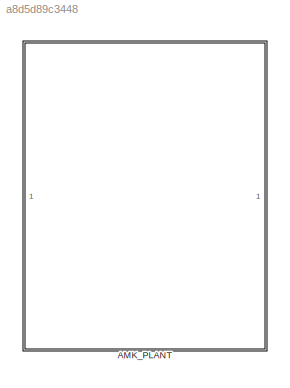
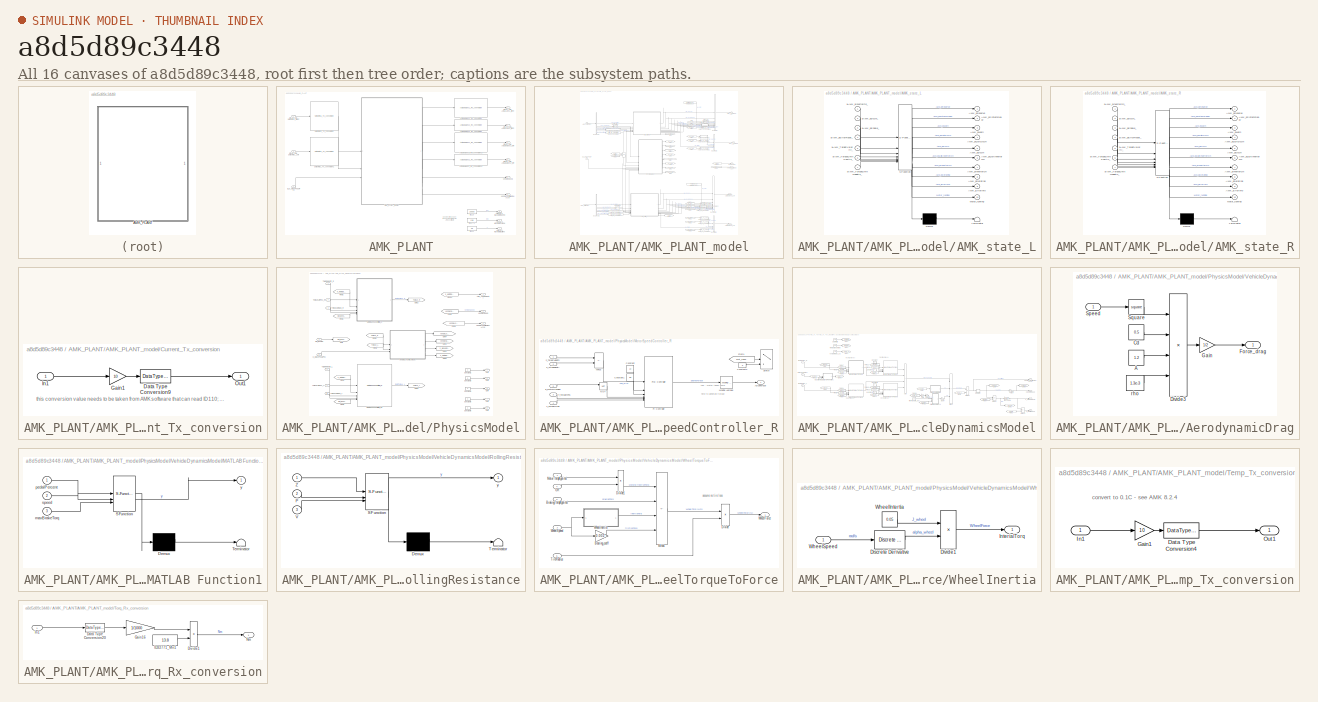
[diagram: thumbnail index - all 16 canvases of the model, root first then tree order]
MODEL slx_a8d5d89c3448
KIND library
CONFIG AbsTol = auto
CONFIG EnableMultiTasking = off
CONFIG FixedStep = auto
CONFIG MaxStep = auto
CONFIG MinStep = auto
CONFIG RelTol = 1e-3
CONFIG SampleTimeConstraint = Unconstrained
CONFIG SolverName = VariableStepAuto
CONFIG StartTime = 0.0
CONFIG StopTime = 10.0
BLOCK [SubSystem] AMK_PLANT
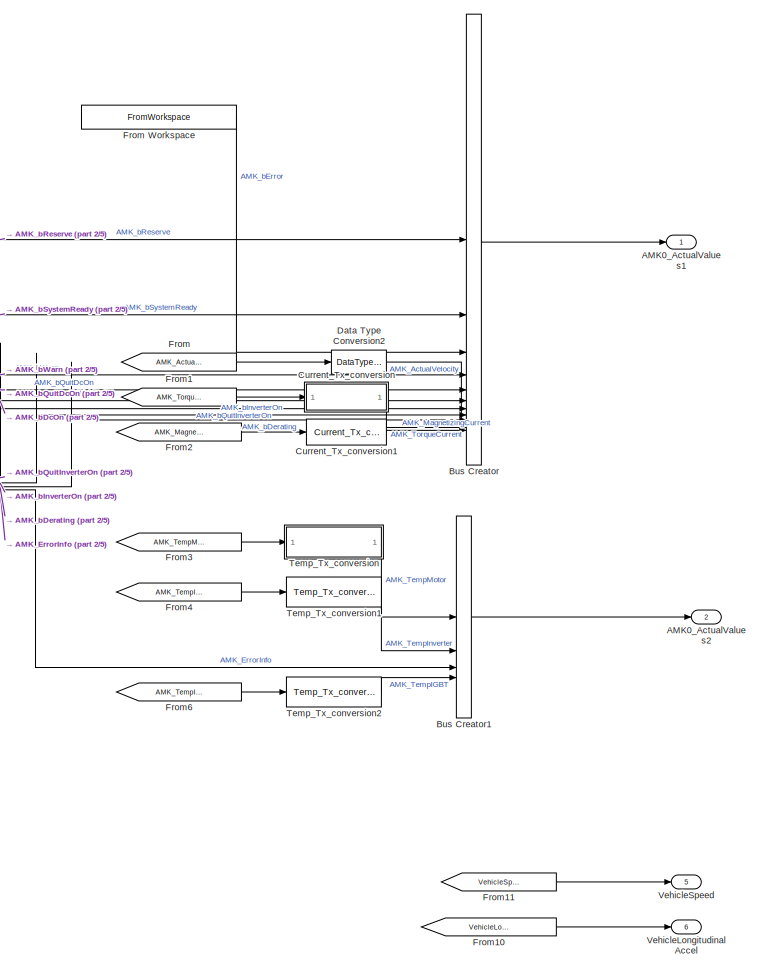
[diagram: AMK_PLANT/AMK_PLANT_model - part 1/5, top right region]
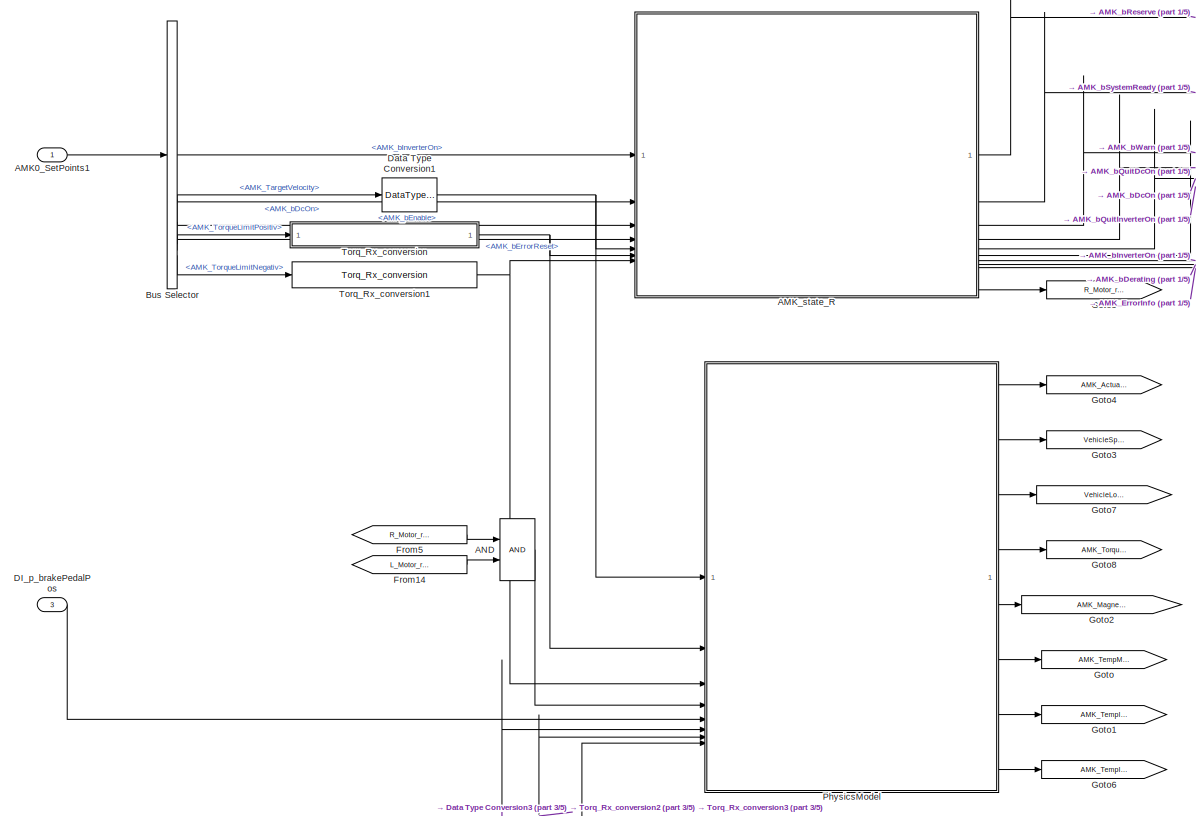
[diagram: AMK_PLANT/AMK_PLANT_model - part 2/5, middle left region]
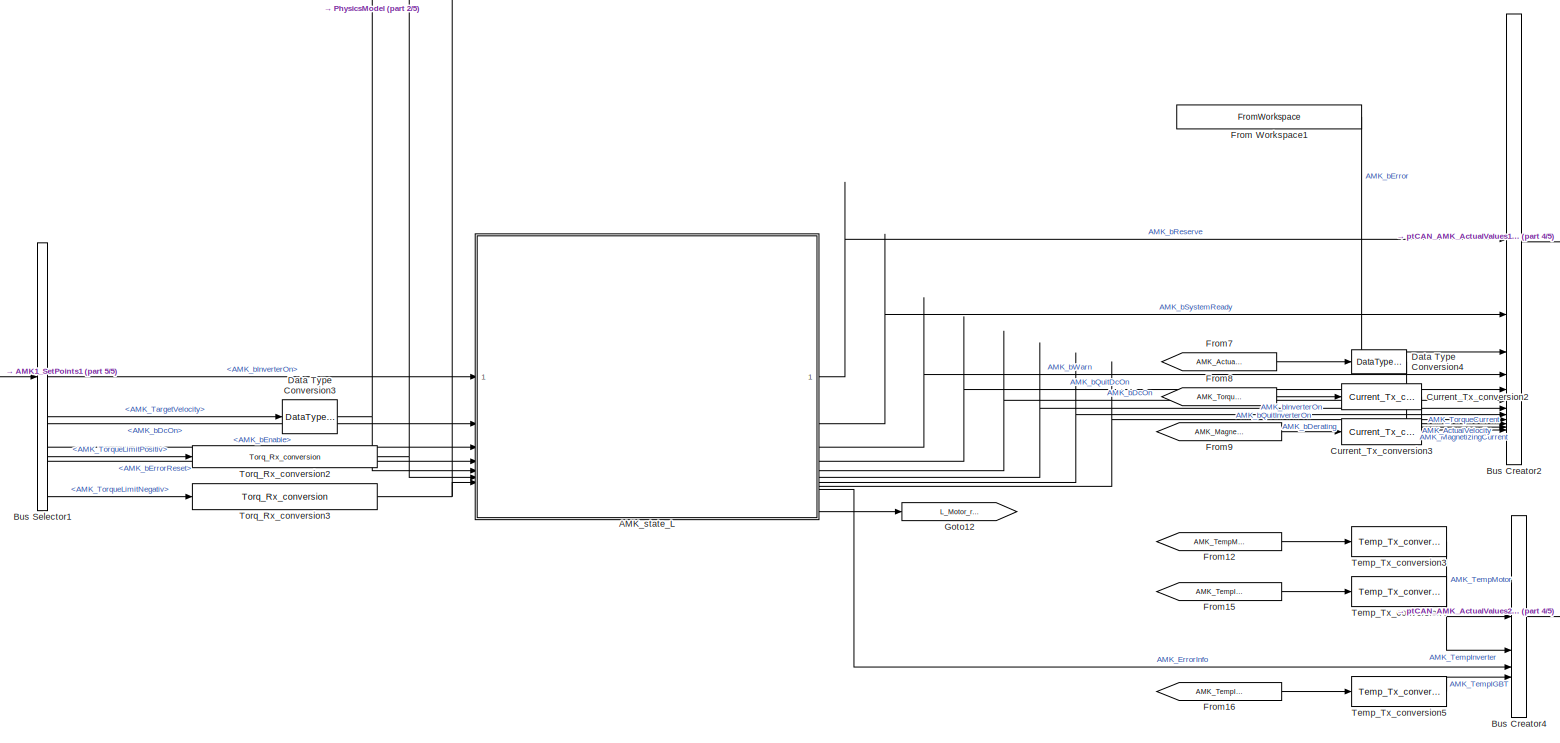
[diagram: AMK_PLANT/AMK_PLANT_model - part 3/5, full width, bottom band]
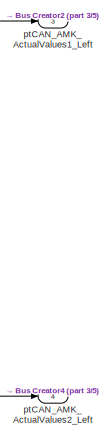
[diagram: AMK_PLANT/AMK_PLANT_model - part 4/5, bottom right region]
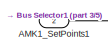
[diagram: AMK_PLANT/AMK_PLANT_model - part 5/5, bottom left region]
BLOCK [SubSystem] AMK_PLANT/AMK_PLANT_model
BLOCK [Outport] AMK_PLANT/AMK_PLANT_model/AMK0_ActualValues1
BLOCK [Outport] AMK_PLANT/AMK_PLANT_model/AMK0_ActualValues2
  Port = 2
BLOCK [Inport] AMK_PLANT/AMK_PLANT_model/AMK0_SetPoints1
BLOCK [Inport] AMK_PLANT/AMK_PLANT_model/AMK1_SetPoints1
  Port = 2
BLOCK [SubSystem] AMK_PLANT/AMK_PLANT_model/AMK_state_L
  ErrorFcn = Stateflow.Translate.translate
  PermitHierarchicalResolution = ExplicitOnly
  SFBlockType = Chart
  TreatAsAtomicUnit = on
BLOCK [Demux] AMK_PLANT/AMK_PLANT_model/AMK_state_L/ Demux 
  Outputs = 1
BLOCK [S-Function] AMK_PLANT/AMK_PLANT_model/AMK_state_L/ SFunction 
  EnableBusSupport = off
  FunctionName = sf_sfun
  PortCounts = [7 11]
  SFcnIsStateOwnerBlock = off
  SFunctionDeploymentMode = off
  Tag = Stateflow S-Function 1
BLOCK [Terminator] AMK_PLANT/AMK_PLANT_model/AMK_state_L/ Terminator 
BLOCK [Outport] AMK_PLANT/AMK_PLANT_model/AMK_state_L/AMK_ErrorInfo
  Port = 9
BLOCK [Outport] AMK_PLANT/AMK_PLANT_model/AMK_state_L/AMK_bDcOn
  Port = 5
BLOCK [Outport] AMK_PLANT/AMK_PLANT_model/AMK_state_L/AMK_bDerating
  Port = 8
BLOCK [Outport] AMK_PLANT/AMK_PLANT_model/AMK_state_L/AMK_bInverterOn
  Port = 7
BLOCK [Outport] AMK_PLANT/AMK_PLANT_model/AMK_state_L/AMK_bQuitDcOn
  Port = 4
BLOCK [Outport] AMK_PLANT/AMK_PLANT_model/AMK_state_L/AMK_bQuitInverterOn
  Port = 6
BLOCK [Outport] AMK_PLANT/AMK_PLANT_model/AMK_state_L/AMK_bReserve
BLOCK [Outport] AMK_PLANT/AMK_PLANT_model/AMK_state_L/AMK_bSystemReady
  Port = 2
BLOCK [Outport] AMK_PLANT/AMK_PLANT_model/AMK_state_L/AMK_bWarn
  Port = 3
BLOCK [Outport] AMK_PLANT/AMK_PLANT_model/AMK_state_L/Motor_running
  Port = 10
BLOCK [Inport] AMK_PLANT/AMK_PLANT_model/AMK_state_L/aAMK_TargetVelocity_
  Port = 5
BLOCK [Inport] AMK_PLANT/AMK_PLANT_model/AMK_state_L/aAMK_TorqueLimitNegativ_
  Port = 7
BLOCK [Inport] AMK_PLANT/AMK_PLANT_model/AMK_state_L/aAMK_TorqueLimitPositiv_
  Port = 6
BLOCK [Inport] AMK_PLANT/AMK_PLANT_model/AMK_state_L/aAMK_bDcOn_
  Port = 2
BLOCK [Inport] AMK_PLANT/AMK_PLANT_model/AMK_state_L/aAMK_bEnable_
  Port = 3
BLOCK [Inport] AMK_PLANT/AMK_PLANT_model/AMK_state_L/aAMK_bErrorReset_
  Port = 4
BLOCK [Inport] AMK_PLANT/AMK_PLANT_model/AMK_state_L/aAMK_bInverterOn_
BLOCK [SubSystem] AMK_PLANT/AMK_PLANT_model/AMK_state_R
  ErrorFcn = Stateflow.Translate.translate
  PermitHierarchicalResolution = ExplicitOnly
  SFBlockType = Chart
  TreatAsAtomicUnit = on
BLOCK [Demux] AMK_PLANT/AMK_PLANT_model/AMK_state_R/ Demux 
  Outputs = 1
BLOCK [S-Function] AMK_PLANT/AMK_PLANT_model/AMK_state_R/ SFunction 
  EnableBusSupport = off
  FunctionName = sf_sfun
  PortCounts = [7 11]
  SFcnIsStateOwnerBlock = off
  SFunctionDeploymentMode = off
  Tag = Stateflow S-Function 3
BLOCK [Terminator] AMK_PLANT/AMK_PLANT_model/AMK_state_R/ Terminator 
BLOCK [Outport] AMK_PLANT/AMK_PLANT_model/AMK_state_R/AMK_ErrorInfo
  Port = 9
BLOCK [Outport] AMK_PLANT/AMK_PLANT_model/AMK_state_R/AMK_bDcOn
  Port = 5
BLOCK [Outport] AMK_PLANT/AMK_PLANT_model/AMK_state_R/AMK_bDerating
  Port = 8
BLOCK [Outport] AMK_PLANT/AMK_PLANT_model/AMK_state_R/AMK_bInverterOn
  Port = 7
BLOCK [Outport] AMK_PLANT/AMK_PLANT_model/AMK_state_R/AMK_bQuitDcOn
  Port = 4
BLOCK [Outport] AMK_PLANT/AMK_PLANT_model/AMK_state_R/AMK_bQuitInverterOn
  Port = 6
BLOCK [Outport] AMK_PLANT/AMK_PLANT_model/AMK_state_R/AMK_bReserve
BLOCK [Outport] AMK_PLANT/AMK_PLANT_model/AMK_state_R/AMK_bSystemReady
  Port = 2
BLOCK [Outport] AMK_PLANT/AMK_PLANT_model/AMK_state_R/AMK_bWarn
  Port = 3
BLOCK [Outport] AMK_PLANT/AMK_PLANT_model/AMK_state_R/Motor_running
  Port = 10
BLOCK [Inport] AMK_PLANT/AMK_PLANT_model/AMK_state_R/aAMK_TargetVelocity_
  Port = 5
BLOCK [Inport] AMK_PLANT/AMK_PLANT_model/AMK_state_R/aAMK_TorqueLimitNegativ_
  Port = 7
BLOCK [Inport] AMK_PLANT/AMK_PLANT_model/AMK_state_R/aAMK_TorqueLimitPositiv_
  Port = 6
BLOCK [Inport] AMK_PLANT/AMK_PLANT_model/AMK_state_R/aAMK_bDcOn_
  Port = 2
BLOCK [Inport] AMK_PLANT/AMK_PLANT_model/AMK_state_R/aAMK_bEnable_
  Port = 3
BLOCK [Inport] AMK_PLANT/AMK_PLANT_model/AMK_state_R/aAMK_bErrorReset_
  Port = 4
BLOCK [Inport] AMK_PLANT/AMK_PLANT_model/AMK_state_R/aAMK_bInverterOn_
BLOCK [Logic] AMK_PLANT/AMK_PLANT_model/AND
  AllPortsSameDT = off
  IconShape = distinctive
  OutDataTypeStr = boolean
BLOCK [BusCreator] AMK_PLANT/AMK_PLANT_model/Bus Creator
  DisplayOption = bar
  InheritFromInputs = on
  Inputs = 12
BLOCK [BusCreator] AMK_PLANT/AMK_PLANT_model/Bus Creator1
  DisplayOption = bar
  InheritFromInputs = on
  Inputs = 4
BLOCK [BusCreator] AMK_PLANT/AMK_PLANT_model/Bus Creator2
  DisplayOption = bar
  InheritFromInputs = on
  Inputs = 12
BLOCK [BusCreator] AMK_PLANT/AMK_PLANT_model/Bus Creator4
  DisplayOption = bar
  InheritFromInputs = on
  Inputs = 4
BLOCK [BusSelector] AMK_PLANT/AMK_PLANT_model/Bus Selector
  OutputSignals = AMK_bInverterOn,AMK_bDcOn,AMK_bEnable,AMK_bErrorReset,AMK_TargetVelocity,AMK_TorqueLimitPositiv,AMK_TorqueLimitNegativ
BLOCK [BusSelector] AMK_PLANT/AMK_PLANT_model/Bus Selector1
  OutputSignals = AMK_bInverterOn,AMK_bDcOn,AMK_bEnable,AMK_bErrorReset,AMK_TargetVelocity,AMK_TorqueLimitPositiv,AMK_TorqueLimitNegativ
BLOCK [SubSystem] AMK_PLANT/AMK_PLANT_model/Current_Tx_conversion
BLOCK [DataTypeConversion] AMK_PLANT/AMK_PLANT_model/Current_Tx_conversion/Data Type Conversion9
  OutDataTypeStr = int16
  RndMeth = Floor
  SaturateOnIntegerOverflow = off
BLOCK [Gain] AMK_PLANT/AMK_PLANT_model/Current_Tx_conversion/Gain1
  Gain = 10
BLOCK [Inport] AMK_PLANT/AMK_PLANT_model/Current_Tx_conversion/In1
BLOCK [Outport] AMK_PLANT/AMK_PLANT_model/Current_Tx_conversion/Out1
BLOCK [Reference] AMK_PLANT/AMK_PLANT_model/Current_Tx_conversion1  REF=$bdroot/AMK_PLANT/AMK_PLANT_model/Current_Tx_conversion
  SourceBlock = $bdroot/AMK_PLANT/AMK_PLANT_model/Current_Tx_conversion
  SourceType = SubSystem
BLOCK [Reference] AMK_PLANT/AMK_PLANT_model/Current_Tx_conversion2  REF=$bdroot/AMK_PLANT/AMK_PLANT_model/Current_Tx_conversion
  SourceBlock = $bdroot/AMK_PLANT/AMK_PLANT_model/Current_Tx_conversion
  SourceType = SubSystem
BLOCK [Reference] AMK_PLANT/AMK_PLANT_model/Current_Tx_conversion3  REF=$bdroot/AMK_PLANT/AMK_PLANT_model/Current_Tx_conversion
  SourceBlock = $bdroot/AMK_PLANT/AMK_PLANT_model/Current_Tx_conversion
  SourceType = SubSystem
BLOCK [Inport] AMK_PLANT/AMK_PLANT_model/DI_p_brakePedalPos
  Port = 3
BLOCK [DataTypeConversion] AMK_PLANT/AMK_PLANT_model/Data Type Conversion1
  OutDataTypeStr = double
  RndMeth = Floor
  SaturateOnIntegerOverflow = off
BLOCK [DataTypeConversion] AMK_PLANT/AMK_PLANT_model/Data Type Conversion2
  OutDataTypeStr = int16
  RndMeth = Floor
  SaturateOnIntegerOverflow = off
BLOCK [DataTypeConversion] AMK_PLANT/AMK_PLANT_model/Data Type Conversion3
  OutDataTypeStr = double
  RndMeth = Floor
  SaturateOnIntegerOverflow = off
BLOCK [DataTypeConversion] AMK_PLANT/AMK_PLANT_model/Data Type Conversion4
  OutDataTypeStr = int16
  RndMeth = Floor
  SaturateOnIntegerOverflow = off
BLOCK [From] AMK_PLANT/AMK_PLANT_model/From
  GotoTag = AMK_ActualVelocity
BLOCK [FromWorkspace] AMK_PLANT/AMK_PLANT_model/From Workspace
  VariableName = VCS_inputData.get('AMK_bError_right')
BLOCK [FromWorkspace] AMK_PLANT/AMK_PLANT_model/From Workspace1
  VariableName = VCS_inputData.get('AMK_bError_left')
BLOCK [From] AMK_PLANT/AMK_PLANT_model/From1
  GotoTag = AMK_TorqueCurrent
BLOCK [From] AMK_PLANT/AMK_PLANT_model/From10
  GotoTag = VehicleLongitudinalAccel
BLOCK [From] AMK_PLANT/AMK_PLANT_model/From11
  GotoTag = VehicleSpeed
BLOCK [From] AMK_PLANT/AMK_PLANT_model/From12
  GotoTag = AMK_TempMotor
BLOCK [From] AMK_PLANT/AMK_PLANT_model/From14
  GotoTag = L_Motor_running
BLOCK [From] AMK_PLANT/AMK_PLANT_model/From15
  GotoTag = AMK_TempInverter
BLOCK [From] AMK_PLANT/AMK_PLANT_model/From16
  GotoTag = AMK_TempIGBT
BLOCK [From] AMK_PLANT/AMK_PLANT_model/From2
  GotoTag = AMK_MagnetizingCurrent
BLOCK [From] AMK_PLANT/AMK_PLANT_model/From3
  GotoTag = AMK_TempMotor
BLOCK [From] AMK_PLANT/AMK_PLANT_model/From4
  GotoTag = AMK_TempInverter
BLOCK [From] AMK_PLANT/AMK_PLANT_model/From5
  GotoTag = R_Motor_running
BLOCK [From] AMK_PLANT/AMK_PLANT_model/From6
  GotoTag = AMK_TempIGBT
BLOCK [From] AMK_PLANT/AMK_PLANT_model/From7
  GotoTag = AMK_ActualVelocity
BLOCK [From] AMK_PLANT/AMK_PLANT_model/From8
  GotoTag = AMK_TorqueCurrent
BLOCK [From] AMK_PLANT/AMK_PLANT_model/From9
  GotoTag = AMK_MagnetizingCurrent
BLOCK [Goto] AMK_PLANT/AMK_PLANT_model/Goto
  GotoTag = AMK_TempMotor
BLOCK [Goto] AMK_PLANT/AMK_PLANT_model/Goto1
  GotoTag = AMK_TempInverter
BLOCK [Goto] AMK_PLANT/AMK_PLANT_model/Goto12
  GotoTag = L_Motor_running
BLOCK [Goto] AMK_PLANT/AMK_PLANT_model/Goto2
  GotoTag = AMK_MagnetizingCurrent
BLOCK [Goto] AMK_PLANT/AMK_PLANT_model/Goto3
  GotoTag = VehicleSpeed
BLOCK [Goto] AMK_PLANT/AMK_PLANT_model/Goto4
  GotoTag = AMK_ActualVelocity
BLOCK [Goto] AMK_PLANT/AMK_PLANT_model/Goto5
  GotoTag = R_Motor_running
BLOCK [Goto] AMK_PLANT/AMK_PLANT_model/Goto6
  GotoTag = AMK_TempIGBT
BLOCK [Goto] AMK_PLANT/AMK_PLANT_model/Goto7
  GotoTag = VehicleLongitudinalAccel
BLOCK [Goto] AMK_PLANT/AMK_PLANT_model/Goto8
  GotoTag = AMK_TorqueCurrent
BLOCK [SubSystem] AMK_PLANT/AMK_PLANT_model/PhysicsModel
BLOCK [Outport] AMK_PLANT/AMK_PLANT_model/PhysicsModel/AMK_ActualVelocity
BLOCK [Constant] AMK_PLANT/AMK_PLANT_model/PhysicsModel/Constant1
  OutDataTypeStr = single
  Value = 0
BLOCK [Constant] AMK_PLANT/AMK_PLANT_model/PhysicsModel/Constant3
  OutDataTypeStr = single
  Value = 0
BLOCK [Constant] AMK_PLANT/AMK_PLANT_model/PhysicsModel/Constant4
  OutDataTypeStr = single
  Value = 0
BLOCK [Constant] AMK_PLANT/AMK_PLANT_model/PhysicsModel/Constant5
  OutDataTypeStr = single
  Value = 0
BLOCK [Constant] AMK_PLANT/AMK_PLANT_model/PhysicsModel/Constant6
  OutDataTypeStr = single
  Value = 0
BLOCK [From] AMK_PLANT/AMK_PLANT_model/PhysicsModel/From1
  GotoTag = Mot_running
BLOCK [From] AMK_PLANT/AMK_PLANT_model/PhysicsModel/From10
  GotoTag = n_MotorSpeed
BLOCK [From] AMK_PLANT/AMK_PLANT_model/PhysicsModel/From2
  GotoTag = n_MotorSpeed
BLOCK [From] AMK_PLANT/AMK_PLANT_model/PhysicsModel/From3
  GotoTag = Torque_R
BLOCK [From] AMK_PLANT/AMK_PLANT_model/PhysicsModel/From4
  GotoTag = n_MotorSpeed
BLOCK [From] AMK_PLANT/AMK_PLANT_model/PhysicsModel/From5
  GotoTag = VehicleSpeed
BLOCK [From] AMK_PLANT/AMK_PLANT_model/PhysicsModel/From6
  GotoTag = Mot_running
BLOCK [From] AMK_PLANT/AMK_PLANT_model/PhysicsModel/From8
  GotoTag = Torque_L
BLOCK [From] AMK_PLANT/AMK_PLANT_model/PhysicsModel/From9
  GotoTag = VehicleLongitudinalAccel
BLOCK [Goto] AMK_PLANT/AMK_PLANT_model/PhysicsModel/Goto
  GotoTag = Mot_running
BLOCK [Goto] AMK_PLANT/AMK_PLANT_model/PhysicsModel/Goto1
  GotoTag = n_WheelSpeed
BLOCK [Goto] AMK_PLANT/AMK_PLANT_model/PhysicsModel/Goto2
  GotoTag = Torque_R
BLOCK [Goto] AMK_PLANT/AMK_PLANT_model/PhysicsModel/Goto3
  GotoTag = VehicleSpeed
BLOCK [Goto] AMK_PLANT/AMK_PLANT_model/PhysicsModel/Goto4
  GotoTag = VehicleLongitudinalAccel
BLOCK [Goto] AMK_PLANT/AMK_PLANT_model/PhysicsModel/Goto5
  GotoTag = Torque_L
BLOCK [Goto] AMK_PLANT/AMK_PLANT_model/PhysicsModel/Goto6
  GotoTag = n_MotorSpeed
BLOCK [Inport] AMK_PLANT/AMK_PLANT_model/PhysicsModel/Mot_running
  Port = 4
BLOCK [SubSystem] AMK_PLANT/AMK_PLANT_model/PhysicsModel/MotorSpeedController_R
BLOCK [Outport] AMK_PLANT/AMK_PLANT_model/PhysicsModel/MotorSpeedController_R/ActualTorque
BLOCK [Constant] AMK_PLANT/AMK_PLANT_model/PhysicsModel/MotorSpeedController_R/Constant
  OutDataTypeStr = single
  Value = 1.4
BLOCK [Constant] AMK_PLANT/AMK_PLANT_model/PhysicsModel/MotorSpeedController_R/Constant1
  OutDataTypeStr = single
  Value = 0.8
BLOCK [Constant] AMK_PLANT/AMK_PLANT_model/PhysicsModel/MotorSpeedController_R/Constant3
  Commented = on
  Value = 0
BLOCK [From] AMK_PLANT/AMK_PLANT_model/PhysicsModel/MotorSpeedController_R/From1
  Commented = on
  GotoTag = Mot_running
BLOCK [Sum] AMK_PLANT/AMK_PLANT_model/PhysicsModel/MotorSpeedController_R/Minus
  IconShape = rectangular
  Inputs = +-
BLOCK [Reference] AMK_PLANT/AMK_PLANT_model/PhysicsModel/MotorSpeedController_R/Moving Average  REF=dspstat3/Moving
Average
  SourceBlock = dspstat3/Moving\nAverage
  SourceType = dsp.simulink.MovingAverage
BLOCK [Logic] AMK_PLANT/AMK_PLANT_model/PhysicsModel/MotorSpeedController_R/NOT
  AllPortsSameDT = off
  IconShape = distinctive
  Operator = NOT
  OutDataTypeStr = boolean
BLOCK [Reference] AMK_PLANT/AMK_PLANT_model/PhysicsModel/MotorSpeedController_R/PI Controller  REF=slpidlib/PID Controller
  LibrarySourceBlock = mcbhdllib/Controls/Controllers/PI Controller
  SourceBlock = slpidlib/PID Controller
  SourceType = PID 1dof
BLOCK [Switch] AMK_PLANT/AMK_PLANT_model/PhysicsModel/MotorSpeedController_R/Switch
  Commented = on
  Criteria = u2 > Threshold
  InputSameDT = off
  OutDataTypeStr = single
  SaturateOnIntegerOverflow = off
BLOCK [Inport] AMK_PLANT/AMK_PLANT_model/PhysicsModel/MotorSpeedController_R/T_TorqLimNeg
  Port = 4
BLOCK [Inport] AMK_PLANT/AMK_PLANT_model/PhysicsModel/MotorSpeedController_R/T_TorqLimPos
  Port = 3
BLOCK [Inport] AMK_PLANT/AMK_PLANT_model/PhysicsModel/MotorSpeedController_R/b_MotorRunning
  Port = 5
BLOCK [Inport] AMK_PLANT/AMK_PLANT_model/PhysicsModel/MotorSpeedController_R/n_ActualVelocity
  Port = 2
BLOCK [Inport] AMK_PLANT/AMK_PLANT_model/PhysicsModel/MotorSpeedController_R/n_TargetVelocity
BLOCK [Reference] AMK_PLANT/AMK_PLANT_model/PhysicsModel/MotorSpeedController_R1  REF=$bdroot/AMK_PLANT/AMK_PLANT_model/PhysicsModel/MotorSpeedController_R
  SourceBlock = $bdroot/AMK_PLANT/AMK_PLANT_model/PhysicsModel/MotorSpeedController_R
  SourceType = SubSystem
BLOCK [Outport] AMK_PLANT/AMK_PLANT_model/PhysicsModel/Out1
  Port = 4
BLOCK [Outport] AMK_PLANT/AMK_PLANT_model/PhysicsModel/Out3
  Port = 5
BLOCK [Outport] AMK_PLANT/AMK_PLANT_model/PhysicsModel/Out4
  Port = 6
BLOCK [Outport] AMK_PLANT/AMK_PLANT_model/PhysicsModel/Out5
  Port = 7
BLOCK [Outport] AMK_PLANT/AMK_PLANT_model/PhysicsModel/Out6
  Port = 8
BLOCK [Inport] AMK_PLANT/AMK_PLANT_model/PhysicsModel/TargetVelocity_L
  Port = 6
BLOCK [Inport] AMK_PLANT/AMK_PLANT_model/PhysicsModel/TargetVelocity_R
BLOCK [Inport] AMK_PLANT/AMK_PLANT_model/PhysicsModel/TorqueLimNeg_L
  Port = 8
BLOCK [Inport] AMK_PLANT/AMK_PLANT_model/PhysicsModel/TorqueLimNeg_R
  Port = 3
BLOCK [Inport] AMK_PLANT/AMK_PLANT_model/PhysicsModel/TorqueLimPos_L
  Port = 7
BLOCK [Inport] AMK_PLANT/AMK_PLANT_model/PhysicsModel/TorqueLimPos_R
  Port = 2
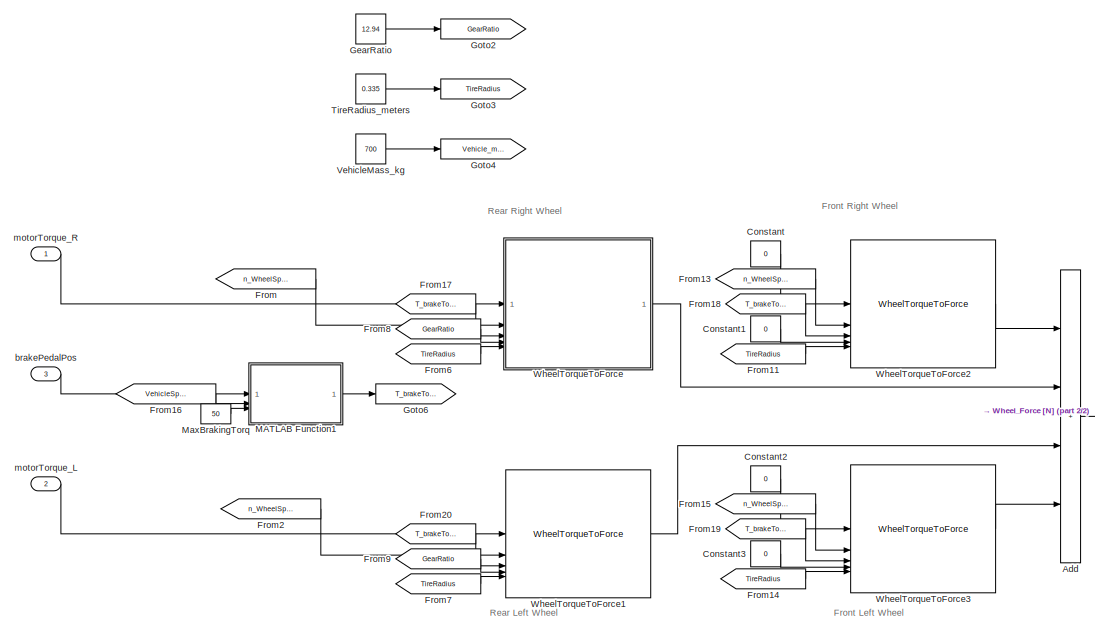
[diagram: AMK_PLANT/AMK_PLANT_model/PhysicsModel/VehicleDynamicsModel - part 1/2, left side, full height]
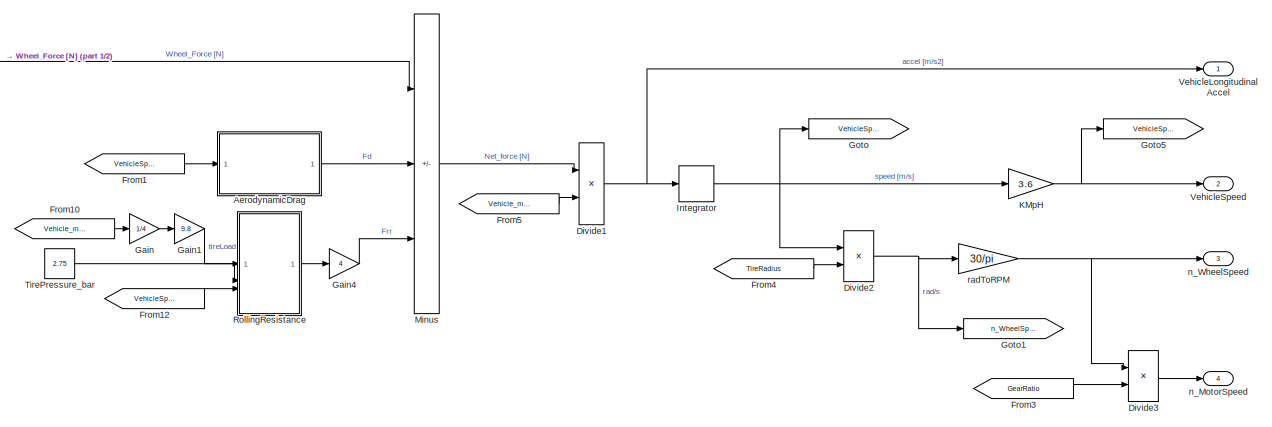
[diagram: AMK_PLANT/AMK_PLANT_model/PhysicsModel/VehicleDynamicsModel - part 2/2, bottom right region]
BLOCK [SubSystem] AMK_PLANT/AMK_PLANT_model/PhysicsModel/VehicleDynamicsModel
BLOCK [Sum] AMK_PLANT/AMK_PLANT_model/PhysicsModel/VehicleDynamicsModel/Add
  IconShape = rectangular
  Inputs = ++++
BLOCK [SubSystem] AMK_PLANT/AMK_PLANT_model/PhysicsModel/VehicleDynamicsModel/AerodynamicDrag
BLOCK [Constant] AMK_PLANT/AMK_PLANT_model/PhysicsModel/VehicleDynamicsModel/AerodynamicDrag/A
  OutDataTypeStr = single
  Value = 1.2
BLOCK [Constant] AMK_PLANT/AMK_PLANT_model/PhysicsModel/VehicleDynamicsModel/AerodynamicDrag/Cd
  OutDataTypeStr = single
  Value = 0.5
BLOCK [Product] AMK_PLANT/AMK_PLANT_model/PhysicsModel/VehicleDynamicsModel/AerodynamicDrag/Divide3
  Inputs = ****
BLOCK [Outport] AMK_PLANT/AMK_PLANT_model/PhysicsModel/VehicleDynamicsModel/AerodynamicDrag/Force_drag
BLOCK [Gain] AMK_PLANT/AMK_PLANT_model/PhysicsModel/VehicleDynamicsModel/AerodynamicDrag/Gain
  Gain = 1/2
BLOCK [Inport] AMK_PLANT/AMK_PLANT_model/PhysicsModel/VehicleDynamicsModel/AerodynamicDrag/Speed
BLOCK [Math] AMK_PLANT/AMK_PLANT_model/PhysicsModel/VehicleDynamicsModel/AerodynamicDrag/Square
  Operator = square
BLOCK [Constant] AMK_PLANT/AMK_PLANT_model/PhysicsModel/VehicleDynamicsModel/AerodynamicDrag/rho
  OutDataTypeStr = single
  Value = 1.3e-3
BLOCK [Constant] AMK_PLANT/AMK_PLANT_model/PhysicsModel/VehicleDynamicsModel/Constant
  OutDataTypeStr = single
  Value = 0
BLOCK [Constant] AMK_PLANT/AMK_PLANT_model/PhysicsModel/VehicleDynamicsModel/Constant1
  OutDataTypeStr = single
  Value = 0
BLOCK [Constant] AMK_PLANT/AMK_PLANT_model/PhysicsModel/VehicleDynamicsModel/Constant2
  OutDataTypeStr = single
  Value = 0
BLOCK [Constant] AMK_PLANT/AMK_PLANT_model/PhysicsModel/VehicleDynamicsModel/Constant3
  OutDataTypeStr = single
  Value = 0
BLOCK [Product] AMK_PLANT/AMK_PLANT_model/PhysicsModel/VehicleDynamicsModel/Divide1
  Inputs = */
BLOCK [Product] AMK_PLANT/AMK_PLANT_model/PhysicsModel/VehicleDynamicsModel/Divide2
  Inputs = */
BLOCK [Product] AMK_PLANT/AMK_PLANT_model/PhysicsModel/VehicleDynamicsModel/Divide3
  Inputs = **
BLOCK [From] AMK_PLANT/AMK_PLANT_model/PhysicsModel/VehicleDynamicsModel/From
  GotoTag = n_WheelSpeed_rad
BLOCK [From] AMK_PLANT/AMK_PLANT_model/PhysicsModel/VehicleDynamicsModel/From1
  GotoTag = VehicleSpeed_m
BLOCK [From] AMK_PLANT/AMK_PLANT_model/PhysicsModel/VehicleDynamicsModel/From10
  GotoTag = Vehicle_mass
BLOCK [From] AMK_PLANT/AMK_PLANT_model/PhysicsModel/VehicleDynamicsModel/From11
  GotoTag = TireRadius
BLOCK [From] AMK_PLANT/AMK_PLANT_model/PhysicsModel/VehicleDynamicsModel/From12
  GotoTag = VehicleSpeed_kmh
BLOCK [From] AMK_PLANT/AMK_PLANT_model/PhysicsModel/VehicleDynamicsModel/From13
  GotoTag = n_WheelSpeed_rad
BLOCK [From] AMK_PLANT/AMK_PLANT_model/PhysicsModel/VehicleDynamicsModel/From14
  GotoTag = TireRadius
BLOCK [From] AMK_PLANT/AMK_PLANT_model/PhysicsModel/VehicleDynamicsModel/From15
  GotoTag = n_WheelSpeed_rad
BLOCK [From] AMK_PLANT/AMK_PLANT_model/PhysicsModel/VehicleDynamicsModel/From16
  GotoTag = VehicleSpeed_m
BLOCK [From] AMK_PLANT/AMK_PLANT_model/PhysicsModel/VehicleDynamicsModel/From17
  GotoTag = T_brakeTorq
BLOCK [From] AMK_PLANT/AMK_PLANT_model/PhysicsModel/VehicleDynamicsModel/From18
  GotoTag = T_brakeTorq
BLOCK [From] AMK_PLANT/AMK_PLANT_model/PhysicsModel/VehicleDynamicsModel/From19
  GotoTag = T_brakeTorq
BLOCK [From] AMK_PLANT/AMK_PLANT_model/PhysicsModel/VehicleDynamicsModel/From2
  GotoTag = n_WheelSpeed_rad
BLOCK [From] AMK_PLANT/AMK_PLANT_model/PhysicsModel/VehicleDynamicsModel/From20
  GotoTag = T_brakeTorq
BLOCK [From] AMK_PLANT/AMK_PLANT_model/PhysicsModel/VehicleDynamicsModel/From3
  GotoTag = GearRatio
BLOCK [From] AMK_PLANT/AMK_PLANT_model/PhysicsModel/VehicleDynamicsModel/From4
  GotoTag = TireRadius
BLOCK [From] AMK_PLANT/AMK_PLANT_model/PhysicsModel/VehicleDynamicsModel/From5
  GotoTag = Vehicle_mass
BLOCK [From] AMK_PLANT/AMK_PLANT_model/PhysicsModel/VehicleDynamicsModel/From6
  GotoTag = TireRadius
BLOCK [From] AMK_PLANT/AMK_PLANT_model/PhysicsModel/VehicleDynamicsModel/From7
  GotoTag = TireRadius
BLOCK [From] AMK_PLANT/AMK_PLANT_model/PhysicsModel/VehicleDynamicsModel/From8
  GotoTag = GearRatio
BLOCK [From] AMK_PLANT/AMK_PLANT_model/PhysicsModel/VehicleDynamicsModel/From9
  GotoTag = GearRatio
BLOCK [Gain] AMK_PLANT/AMK_PLANT_model/PhysicsModel/VehicleDynamicsModel/Gain
  Gain = 1/4
BLOCK [Gain] AMK_PLANT/AMK_PLANT_model/PhysicsModel/VehicleDynamicsModel/Gain1
  Gain = 9.8
BLOCK [Gain] AMK_PLANT/AMK_PLANT_model/PhysicsModel/VehicleDynamicsModel/Gain4
  Gain = 4
BLOCK [Constant] AMK_PLANT/AMK_PLANT_model/PhysicsModel/VehicleDynamicsModel/GearRatio
  OutDataTypeStr = single
  Value = 12.94
BLOCK [Goto] AMK_PLANT/AMK_PLANT_model/PhysicsModel/VehicleDynamicsModel/Goto
  GotoTag = VehicleSpeed_m
BLOCK [Goto] AMK_PLANT/AMK_PLANT_model/PhysicsModel/VehicleDynamicsModel/Goto1
  GotoTag = n_WheelSpeed_rad
BLOCK [Goto] AMK_PLANT/AMK_PLANT_model/PhysicsModel/VehicleDynamicsModel/Goto2
  GotoTag = GearRatio
BLOCK [Goto] AMK_PLANT/AMK_PLANT_model/PhysicsModel/VehicleDynamicsModel/Goto3
  GotoTag = TireRadius
BLOCK [Goto] AMK_PLANT/AMK_PLANT_model/PhysicsModel/VehicleDynamicsModel/Goto4
  GotoTag = Vehicle_mass
BLOCK [Goto] AMK_PLANT/AMK_PLANT_model/PhysicsModel/VehicleDynamicsModel/Goto5
  GotoTag = VehicleSpeed_kmh
BLOCK [Goto] AMK_PLANT/AMK_PLANT_model/PhysicsModel/VehicleDynamicsModel/Goto6
  GotoTag = T_brakeTorq
BLOCK [DiscreteIntegrator] AMK_PLANT/AMK_PLANT_model/PhysicsModel/VehicleDynamicsModel/Integrator
  ICPrevOutput = DiscIntNeverNeededParam
  ICPrevScaledInput = DiscIntNeverNeededParam
  InitialConditionSetting = Auto
  SampleTime = -1
BLOCK [Gain] AMK_PLANT/AMK_PLANT_model/PhysicsModel/VehicleDynamicsModel/KMpH
  Gain = 3.6
BLOCK [SubSystem] AMK_PLANT/AMK_PLANT_model/PhysicsModel/VehicleDynamicsModel/MATLAB Function1
  ErrorFcn = Stateflow.Translate.translate
  LibrarySourceBlock = simulink/User-Defined\nFunctions/MATLAB Function
  PermitHierarchicalResolution = ExplicitOnly
  SFBlockType = MATLAB Function
  TreatAsAtomicUnit = on
BLOCK [Demux] AMK_PLANT/AMK_PLANT_model/PhysicsModel/VehicleDynamicsModel/MATLAB Function1/ Demux 
  Outputs = 1
BLOCK [S-Function] AMK_PLANT/AMK_PLANT_model/PhysicsModel/VehicleDynamicsModel/MATLAB Function1/ SFunction 
  EnableBusSupport = off
  FunctionName = sf_sfun
  PortCounts = [3 2]
  SFcnIsStateOwnerBlock = off
  SFunctionDeploymentMode = off
  Tag = Stateflow S-Function 4
BLOCK [Terminator] AMK_PLANT/AMK_PLANT_model/PhysicsModel/VehicleDynamicsModel/MATLAB Function1/ Terminator 
BLOCK [Inport] AMK_PLANT/AMK_PLANT_model/PhysicsModel/VehicleDynamicsModel/MATLAB Function1/maxBrakeTorq
  Port = 3
BLOCK [Inport] AMK_PLANT/AMK_PLANT_model/PhysicsModel/VehicleDynamicsModel/MATLAB Function1/pedalPercent
BLOCK [Inport] AMK_PLANT/AMK_PLANT_model/PhysicsModel/VehicleDynamicsModel/MATLAB Function1/speed
  Port = 2
BLOCK [Outport] AMK_PLANT/AMK_PLANT_model/PhysicsModel/VehicleDynamicsModel/MATLAB Function1/y
BLOCK [Constant] AMK_PLANT/AMK_PLANT_model/PhysicsModel/VehicleDynamicsModel/MaxBrakingTorq
  OutDataTypeStr = single
  Value = 50
BLOCK [Sum] AMK_PLANT/AMK_PLANT_model/PhysicsModel/VehicleDynamicsModel/Minus
  IconShape = rectangular
  Inputs = +--
BLOCK [SubSystem] AMK_PLANT/AMK_PLANT_model/PhysicsModel/VehicleDynamicsModel/RollingResistance
  ErrorFcn = Stateflow.Translate.translate
  LibrarySourceBlock = simulink/User-Defined\nFunctions/MATLAB Function
  PermitHierarchicalResolution = ExplicitOnly
  SFBlockType = MATLAB Function
  TreatAsAtomicUnit = on
BLOCK [Demux] AMK_PLANT/AMK_PLANT_model/PhysicsModel/VehicleDynamicsModel/RollingResistance/ Demux 
  Outputs = 1
BLOCK [S-Function] AMK_PLANT/AMK_PLANT_model/PhysicsModel/VehicleDynamicsModel/RollingResistance/ SFunction 
  EnableBusSupport = off
  FunctionName = sf_sfun
  PortCounts = [3 2]
  SFcnIsStateOwnerBlock = off
  SFunctionDeploymentMode = off
  Tag = Stateflow S-Function 2
BLOCK [Terminator] AMK_PLANT/AMK_PLANT_model/PhysicsModel/VehicleDynamicsModel/RollingResistance/ Terminator 
BLOCK [Inport] AMK_PLANT/AMK_PLANT_model/PhysicsModel/VehicleDynamicsModel/RollingResistance/P
  Port = 2
BLOCK [Inport] AMK_PLANT/AMK_PLANT_model/PhysicsModel/VehicleDynamicsModel/RollingResistance/V
  Port = 3
BLOCK [Inport] AMK_PLANT/AMK_PLANT_model/PhysicsModel/VehicleDynamicsModel/RollingResistance/Z
BLOCK [Outport] AMK_PLANT/AMK_PLANT_model/PhysicsModel/VehicleDynamicsModel/RollingResistance/y
BLOCK [Constant] AMK_PLANT/AMK_PLANT_model/PhysicsModel/VehicleDynamicsModel/TirePressure_bar
  OutDataTypeStr = single
  Value = 2.75
BLOCK [Constant] AMK_PLANT/AMK_PLANT_model/PhysicsModel/VehicleDynamicsModel/TireRadius_meters
  OutDataTypeStr = single
  Value = 0.335
BLOCK [Outport] AMK_PLANT/AMK_PLANT_model/PhysicsModel/VehicleDynamicsModel/VehicleLongitudinalAccel
BLOCK [Constant] AMK_PLANT/AMK_PLANT_model/PhysicsModel/VehicleDynamicsModel/VehicleMass_kg
  OutDataTypeStr = single
  Value = 700
BLOCK [Outport] AMK_PLANT/AMK_PLANT_model/PhysicsModel/VehicleDynamicsModel/VehicleSpeed
  Port = 2
BLOCK [SubSystem] AMK_PLANT/AMK_PLANT_model/PhysicsModel/VehicleDynamicsModel/WheelTorqueToForce
BLOCK [Gain] AMK_PLANT/AMK_PLANT_model/PhysicsModel/VehicleDynamicsModel/WheelTorqueToForce/Bearing_coeff
  Gain = 0.002
BLOCK [Inport] AMK_PLANT/AMK_PLANT_model/PhysicsModel/VehicleDynamicsModel/WheelTorqueToForce/BrakingTorqApplied
  Port = 3
BLOCK [Product] AMK_PLANT/AMK_PLANT_model/PhysicsModel/VehicleDynamicsModel/WheelTorqueToForce/Divide
  Inputs = */
BLOCK [Product] AMK_PLANT/AMK_PLANT_model/PhysicsModel/VehicleDynamicsModel/WheelTorqueToForce/Divide1
  Inputs = **
BLOCK [Inport] AMK_PLANT/AMK_PLANT_model/PhysicsModel/VehicleDynamicsModel/WheelTorqueToForce/GR
  Port = 4
BLOCK [Sum] AMK_PLANT/AMK_PLANT_model/PhysicsModel/VehicleDynamicsModel/WheelTorqueToForce/Minus
  IconShape = rectangular
  Inputs = +---
BLOCK [Inport] AMK_PLANT/AMK_PLANT_model/PhysicsModel/VehicleDynamicsModel/WheelTorqueToForce/MotorTorqApplied
BLOCK [Inport] AMK_PLANT/AMK_PLANT_model/PhysicsModel/VehicleDynamicsModel/WheelTorqueToForce/TireRadius
  Port = 5
BLOCK [Outport] AMK_PLANT/AMK_PLANT_model/PhysicsModel/VehicleDynamicsModel/WheelTorqueToForce/WheelForce
BLOCK [SubSystem] AMK_PLANT/AMK_PLANT_model/PhysicsModel/VehicleDynamicsModel/WheelTorqueToForce/WheelInertia
BLOCK [Reference] AMK_PLANT/AMK_PLANT_model/PhysicsModel/VehicleDynamicsModel/WheelTorqueToForce/WheelInertia/Discrete Derivative  REF=simulink/Discrete/Discrete Derivative
  SourceBlock = simulink/Discrete/Discrete Derivative
  SourceType = Discrete Derivative
BLOCK [Product] AMK_PLANT/AMK_PLANT_model/PhysicsModel/VehicleDynamicsModel/WheelTorqueToForce/WheelInertia/Divide1
  Inputs = **
BLOCK [Outport] AMK_PLANT/AMK_PLANT_model/PhysicsModel/VehicleDynamicsModel/WheelTorqueToForce/WheelInertia/InterialTorq
BLOCK [Constant] AMK_PLANT/AMK_PLANT_model/PhysicsModel/VehicleDynamicsModel/WheelTorqueToForce/WheelInertia/WheelIntertia
  NameLocation = top
  OutDataTypeStr = single
  Value = 0.05
BLOCK [Inport] AMK_PLANT/AMK_PLANT_model/PhysicsModel/VehicleDynamicsModel/WheelTorqueToForce/WheelInertia/WheelSpeed
BLOCK [Inport] AMK_PLANT/AMK_PLANT_model/PhysicsModel/VehicleDynamicsModel/WheelTorqueToForce/WheelSpeed
  Port = 2
BLOCK [Reference] AMK_PLANT/AMK_PLANT_model/PhysicsModel/VehicleDynamicsModel/WheelTorqueToForce1  REF=$bdroot/AMK_PLANT/AMK_PLANT_model/PhysicsModel/VehicleDynamicsModel/WheelTorqueToForce
  SourceBlock = $bdroot/AMK_PLANT/AMK_PLANT_model/PhysicsModel/VehicleDynamicsModel/WheelTorqueToForce
  SourceType = SubSystem
BLOCK [Reference] AMK_PLANT/AMK_PLANT_model/PhysicsModel/VehicleDynamicsModel/WheelTorqueToForce2  REF=$bdroot/AMK_PLANT/AMK_PLANT_model/PhysicsModel/VehicleDynamicsModel/WheelTorqueToForce
  SourceBlock = $bdroot/AMK_PLANT/AMK_PLANT_model/PhysicsModel/VehicleDynamicsModel/WheelTorqueToForce
  SourceType = SubSystem
BLOCK [Reference] AMK_PLANT/AMK_PLANT_model/PhysicsModel/VehicleDynamicsModel/WheelTorqueToForce3  REF=$bdroot/AMK_PLANT/AMK_PLANT_model/PhysicsModel/VehicleDynamicsModel/WheelTorqueToForce
  SourceBlock = $bdroot/AMK_PLANT/AMK_PLANT_model/PhysicsModel/VehicleDynamicsModel/WheelTorqueToForce
  SourceType = SubSystem
BLOCK [Inport] AMK_PLANT/AMK_PLANT_model/PhysicsModel/VehicleDynamicsModel/brakePedalPos
  Port = 3
BLOCK [Inport] AMK_PLANT/AMK_PLANT_model/PhysicsModel/VehicleDynamicsModel/motorTorque_L
  Port = 2
BLOCK [Inport] AMK_PLANT/AMK_PLANT_model/PhysicsModel/VehicleDynamicsModel/motorTorque_R
BLOCK [Outport] AMK_PLANT/AMK_PLANT_model/PhysicsModel/VehicleDynamicsModel/n_MotorSpeed
  Port = 4
BLOCK [Outport] AMK_PLANT/AMK_PLANT_model/PhysicsModel/VehicleDynamicsModel/n_WheelSpeed
  Port = 3
BLOCK [Gain] AMK_PLANT/AMK_PLANT_model/PhysicsModel/VehicleDynamicsModel/radToRPM
  Gain = 30/pi
BLOCK [Outport] AMK_PLANT/AMK_PLANT_model/PhysicsModel/VehicleLongitudinalAccel
  Port = 3
BLOCK [Outport] AMK_PLANT/AMK_PLANT_model/PhysicsModel/VehicleSpeed
  Port = 2
BLOCK [Inport] AMK_PLANT/AMK_PLANT_model/PhysicsModel/p_brakePedalPos
  Port = 5
BLOCK [SubSystem] AMK_PLANT/AMK_PLANT_model/Temp_Tx_conversion
BLOCK [DataTypeConversion] AMK_PLANT/AMK_PLANT_model/Temp_Tx_conversion/Data Type Conversion4
  OutDataTypeStr = int16
  RndMeth = Floor
  SaturateOnIntegerOverflow = off
BLOCK [Gain] AMK_PLANT/AMK_PLANT_model/Temp_Tx_conversion/Gain1
  Gain = 10
BLOCK [Inport] AMK_PLANT/AMK_PLANT_model/Temp_Tx_conversion/In1
BLOCK [Outport] AMK_PLANT/AMK_PLANT_model/Temp_Tx_conversion/Out1
BLOCK [Reference] AMK_PLANT/AMK_PLANT_model/Temp_Tx_conversion1  REF=$bdroot/AMK_PLANT/AMK_PLANT_model/Temp_Tx_conversion
  SourceBlock = $bdroot/AMK_PLANT/AMK_PLANT_model/Temp_Tx_conversion
  SourceType = SubSystem
BLOCK [Reference] AMK_PLANT/AMK_PLANT_model/Temp_Tx_conversion2  REF=$bdroot/AMK_PLANT/AMK_PLANT_model/Temp_Tx_conversion
  SourceBlock = $bdroot/AMK_PLANT/AMK_PLANT_model/Temp_Tx_conversion
  SourceType = SubSystem
BLOCK [Reference] AMK_PLANT/AMK_PLANT_model/Temp_Tx_conversion3  REF=$bdroot/AMK_PLANT/AMK_PLANT_model/Temp_Tx_conversion
  SourceBlock = $bdroot/AMK_PLANT/AMK_PLANT_model/Temp_Tx_conversion
  SourceType = SubSystem
BLOCK [Reference] AMK_PLANT/AMK_PLANT_model/Temp_Tx_conversion4  REF=$bdroot/AMK_PLANT/AMK_PLANT_model/Temp_Tx_conversion
  SourceBlock = $bdroot/AMK_PLANT/AMK_PLANT_model/Temp_Tx_conversion
  SourceType = SubSystem
BLOCK [Reference] AMK_PLANT/AMK_PLANT_model/Temp_Tx_conversion5  REF=$bdroot/AMK_PLANT/AMK_PLANT_model/Temp_Tx_conversion
  SourceBlock = $bdroot/AMK_PLANT/AMK_PLANT_model/Temp_Tx_conversion
  SourceType = SubSystem
BLOCK [SubSystem] AMK_PLANT/AMK_PLANT_model/Torq_Rx_conversion
BLOCK [DataTypeConversion] AMK_PLANT/AMK_PLANT_model/Torq_Rx_conversion/Data Type Conversion20
  OutDataTypeStr = double
  RndMeth = Floor
  SaturateOnIntegerOverflow = off
BLOCK [Product] AMK_PLANT/AMK_PLANT_model/Torq_Rx_conversion/Divide1
  Inputs = **
BLOCK [Gain] AMK_PLANT/AMK_PLANT_model/Torq_Rx_conversion/Gain16
  Gain = 1/1000
BLOCK [Constant] AMK_PLANT/AMK_PLANT_model/Torq_Rx_conversion/ID32771_Mn1
  OutDataTypeStr = single
  Value = 13.8
BLOCK [Inport] AMK_PLANT/AMK_PLANT_model/Torq_Rx_conversion/In1
BLOCK [Outport] AMK_PLANT/AMK_PLANT_model/Torq_Rx_conversion/Nm
BLOCK [Reference] AMK_PLANT/AMK_PLANT_model/Torq_Rx_conversion1  REF=$bdroot/AMK_PLANT/AMK_PLANT_model/Torq_Rx_conversion
  SourceBlock = $bdroot/AMK_PLANT/AMK_PLANT_model/Torq_Rx_conversion
  SourceType = SubSystem
BLOCK [Reference] AMK_PLANT/AMK_PLANT_model/Torq_Rx_conversion2  REF=$bdroot/AMK_PLANT/AMK_PLANT_model/Torq_Rx_conversion
  SourceBlock = $bdroot/AMK_PLANT/AMK_PLANT_model/Torq_Rx_conversion
  SourceType = SubSystem
BLOCK [Reference] AMK_PLANT/AMK_PLANT_model/Torq_Rx_conversion3  REF=$bdroot/AMK_PLANT/AMK_PLANT_model/Torq_Rx_conversion
  SourceBlock = $bdroot/AMK_PLANT/AMK_PLANT_model/Torq_Rx_conversion
  SourceType = SubSystem
BLOCK [Outport] AMK_PLANT/AMK_PLANT_model/VehicleLongitudinalAccel
  Port = 6
BLOCK [Outport] AMK_PLANT/AMK_PLANT_model/VehicleSpeed
  Port = 5
BLOCK [Outport] AMK_PLANT/AMK_PLANT_model/ptCAN_AMK_ActualValues1_Left
  Port = 3
BLOCK [Outport] AMK_PLANT/AMK_PLANT_model/ptCAN_AMK_ActualValues2_Left
  Port = 4
BLOCK [Outport] AMK_PLANT/AMKcal_I_MaxMotorCurrent
  Port = 7
BLOCK [Outport] AMK_PLANT/AMKcal_T_MaxMotorTorque
  Port = 6
BLOCK [Outport] AMK_PLANT/AMKcal_n_MaxMotorSpeed
  Port = 5
BLOCK [Reference] AMK_PLANT/ActualValues1_Rx_conversion  REF=AMK_CAN_lib/AMK_CAN/ActualValues1_Rx_conversion
  SourceBlock = AMK_CAN_lib/AMK_CAN/ActualValues1_Rx_conversion
  SourceType = SubSystem
BLOCK [Reference] AMK_PLANT/ActualValues1_Rx_conversion1  REF=AMK_CAN_lib/AMK_CAN/ActualValues1_Rx_conversion
  SourceBlock = AMK_CAN_lib/AMK_CAN/ActualValues1_Rx_conversion
  SourceType = SubSystem
BLOCK [Reference] AMK_PLANT/ActualValues2_Rx_conversion  REF=AMK_CAN_lib/AMK_CAN/ActualValues2_Rx_conversion
  SourceBlock = AMK_CAN_lib/AMK_CAN/ActualValues2_Rx_conversion
  SourceType = SubSystem
BLOCK [Reference] AMK_PLANT/ActualValues2_Rx_conversion1  REF=AMK_CAN_lib/AMK_CAN/ActualValues2_Rx_conversion
  SourceBlock = AMK_CAN_lib/AMK_CAN/ActualValues2_Rx_conversion
  SourceType = SubSystem
BLOCK [Inport] AMK_PLANT/DI_p_brakePedalPos
  Port = 3
BLOCK [Constant] AMK_PLANT/ID111
  OutDataTypeStr = single
  Value = 26
BLOCK [Constant] AMK_PLANT/ID113
  OutDataTypeStr = single
  Value = 20000
BLOCK [Constant] AMK_PLANT/ID32771
  OutDataTypeStr = single
  Value = 13.8
BLOCK [Reference] AMK_PLANT/Setpoints1_Tx_conversion  REF=AMK_CAN_lib/AMK_CAN/Setpoints1_Tx_conversion
  SourceBlock = AMK_CAN_lib/AMK_CAN/Setpoints1_Tx_conversion
  SourceType = SubSystem
BLOCK [Reference] AMK_PLANT/Setpoints1_Tx_conversion1  REF=AMK_CAN_lib/AMK_CAN/Setpoints1_Tx_conversion
  SourceBlock = AMK_CAN_lib/AMK_CAN/Setpoints1_Tx_conversion
  SourceType = SubSystem
BLOCK [Outport] AMK_PLANT/VehicleLongitudinalAccel
  Port = 9
BLOCK [Outport] AMK_PLANT/VehicleSpeed
  Port = 8
BLOCK [Outport] AMK_PLANT/ptCAN_AMK_ActualValues1_left
  Port = 3
BLOCK [Outport] AMK_PLANT/ptCAN_AMK_ActualValues1_right
BLOCK [Outport] AMK_PLANT/ptCAN_AMK_ActualValues2_left
  Port = 4
BLOCK [Outport] AMK_PLANT/ptCAN_AMK_ActualValues2_right
  Port = 2
BLOCK [Inport] AMK_PLANT/ptCAN_AMK_Setpoints1_Left
  Port = 2
BLOCK [Inport] AMK_PLANT/ptCAN_AMK_Setpoints1_Right
ANNOTATION AMK_PLANT: Need to verify and get these values from AMK AIPEX software
ANNOTATION AMK_PLANT/AMK_PLANT_model/Current_Tx_conversion: this conversion value needs to be taken from AMK software that can read ID110; see 8.2.4 of AMK docs
ANNOTATION AMK_PLANT/AMK_PLANT_model/PhysicsModel/MotorSpeedController_R: LPF - motor takes some time to generate torque
ANNOTATION AMK_PLANT/AMK_PLANT_model/PhysicsModel/VehicleDynamicsModel: Front Left Wheel
ANNOTATION AMK_PLANT/AMK_PLANT_model/PhysicsModel/VehicleDynamicsModel: Front Right Wheel
ANNOTATION AMK_PLANT/AMK_PLANT_model/PhysicsModel/VehicleDynamicsModel: Rear Left Wheel
ANNOTATION AMK_PLANT/AMK_PLANT_model/PhysicsModel/VehicleDynamicsModel: Rear Right Wheel
ANNOTATION AMK_PLANT/AMK_PLANT_model/PhysicsModel/VehicleDynamicsModel/WheelTorqueToForce: assume no tire loss
ANNOTATION AMK_PLANT/AMK_PLANT_model/Temp_Tx_conversion: convert to 0.1C - see AMK 8.2.4
LINE AMK_PLANT/AMK_PLANT_model/AMK0_SetPoints1:1 -> AMK_PLANT/AMK_PLANT_model/Bus Selector:1
LINE AMK_PLANT/AMK_PLANT_model/AMK1_SetPoints1:1 -> AMK_PLANT/AMK_PLANT_model/Bus Selector1:1
LINE AMK_PLANT/AMK_PLANT_model/AMK_state_L:1 -> AMK_PLANT/AMK_PLANT_model/Bus Creator2:1
LINE AMK_PLANT/AMK_PLANT_model/AMK_state_L:10 -> AMK_PLANT/AMK_PLANT_model/Goto12:1
LINE AMK_PLANT/AMK_PLANT_model/AMK_state_L:2 -> AMK_PLANT/AMK_PLANT_model/Bus Creator2:2
LINE AMK_PLANT/AMK_PLANT_model/AMK_state_L:3 -> AMK_PLANT/AMK_PLANT_model/Bus Creator2:4
LINE AMK_PLANT/AMK_PLANT_model/AMK_state_L:4 -> AMK_PLANT/AMK_PLANT_model/Bus Creator2:5
LINE AMK_PLANT/AMK_PLANT_model/AMK_state_L:5 -> AMK_PLANT/AMK_PLANT_model/Bus Creator2:6
LINE AMK_PLANT/AMK_PLANT_model/AMK_state_L:6 -> AMK_PLANT/AMK_PLANT_model/Bus Creator2:7
LINE AMK_PLANT/AMK_PLANT_model/AMK_state_L:7 -> AMK_PLANT/AMK_PLANT_model/Bus Creator2:8
LINE AMK_PLANT/AMK_PLANT_model/AMK_state_L:8 -> AMK_PLANT/AMK_PLANT_model/Bus Creator2:9
LINE AMK_PLANT/AMK_PLANT_model/AMK_state_L:9 -> AMK_PLANT/AMK_PLANT_model/Bus Creator4:3
LINE AMK_PLANT/AMK_PLANT_model/AMK_state_R:1 -> AMK_PLANT/AMK_PLANT_model/Bus Creator:1
LINE AMK_PLANT/AMK_PLANT_model/AMK_state_R:10 -> AMK_PLANT/AMK_PLANT_model/Goto5:1
LINE AMK_PLANT/AMK_PLANT_model/AMK_state_R:2 -> AMK_PLANT/AMK_PLANT_model/Bus Creator:2
LINE AMK_PLANT/AMK_PLANT_model/AMK_state_R:3 -> AMK_PLANT/AMK_PLANT_model/Bus Creator:4
LINE AMK_PLANT/AMK_PLANT_model/AMK_state_R:4 -> AMK_PLANT/AMK_PLANT_model/Bus Creator:5
LINE AMK_PLANT/AMK_PLANT_model/AMK_state_R:5 -> AMK_PLANT/AMK_PLANT_model/Bus Creator:6
LINE AMK_PLANT/AMK_PLANT_model/AMK_state_R:6 -> AMK_PLANT/AMK_PLANT_model/Bus Creator:7
LINE AMK_PLANT/AMK_PLANT_model/AMK_state_R:7 -> AMK_PLANT/AMK_PLANT_model/Bus Creator:8
LINE AMK_PLANT/AMK_PLANT_model/AMK_state_R:8 -> AMK_PLANT/AMK_PLANT_model/Bus Creator:9
LINE AMK_PLANT/AMK_PLANT_model/AMK_state_R:9 -> AMK_PLANT/AMK_PLANT_model/Bus Creator1:3
LINE AMK_PLANT/AMK_PLANT_model/AND:1 -> AMK_PLANT/AMK_PLANT_model/PhysicsModel:4
LINE AMK_PLANT/AMK_PLANT_model/Bus Creator1:1 -> AMK_PLANT/AMK_PLANT_model/AMK0_ActualValues2:1
LINE AMK_PLANT/AMK_PLANT_model/Bus Creator2:1 -> AMK_PLANT/AMK_PLANT_model/ptCAN_AMK_ActualValues1_Left:1
LINE AMK_PLANT/AMK_PLANT_model/Bus Creator4:1 -> AMK_PLANT/AMK_PLANT_model/ptCAN_AMK_ActualValues2_Left:1
LINE AMK_PLANT/AMK_PLANT_model/Bus Creator:1 -> AMK_PLANT/AMK_PLANT_model/AMK0_ActualValues1:1
LINE AMK_PLANT/AMK_PLANT_model/Bus Selector1:1 -> AMK_PLANT/AMK_PLANT_model/AMK_state_L:1
LINE AMK_PLANT/AMK_PLANT_model/Bus Selector1:2 -> AMK_PLANT/AMK_PLANT_model/AMK_state_L:2
LINE AMK_PLANT/AMK_PLANT_model/Bus Selector1:3 -> AMK_PLANT/AMK_PLANT_model/AMK_state_L:3
LINE AMK_PLANT/AMK_PLANT_model/Bus Selector1:4 -> AMK_PLANT/AMK_PLANT_model/AMK_state_L:4
LINE AMK_PLANT/AMK_PLANT_model/Bus Selector1:5 -> AMK_PLANT/AMK_PLANT_model/Data Type Conversion3:1
LINE AMK_PLANT/AMK_PLANT_model/Bus Selector1:6 -> AMK_PLANT/AMK_PLANT_model/Torq_Rx_conversion2:1
LINE AMK_PLANT/AMK_PLANT_model/Bus Selector1:7 -> AMK_PLANT/AMK_PLANT_model/Torq_Rx_conversion3:1
LINE AMK_PLANT/AMK_PLANT_model/Bus Selector:1 -> AMK_PLANT/AMK_PLANT_model/AMK_state_R:1
LINE AMK_PLANT/AMK_PLANT_model/Bus Selector:2 -> AMK_PLANT/AMK_PLANT_model/AMK_state_R:2
LINE AMK_PLANT/AMK_PLANT_model/Bus Selector:3 -> AMK_PLANT/AMK_PLANT_model/AMK_state_R:3
LINE AMK_PLANT/AMK_PLANT_model/Bus Selector:4 -> AMK_PLANT/AMK_PLANT_model/AMK_state_R:4
LINE AMK_PLANT/AMK_PLANT_model/Bus Selector:5 -> AMK_PLANT/AMK_PLANT_model/Data Type Conversion1:1
LINE AMK_PLANT/AMK_PLANT_model/Bus Selector:6 -> AMK_PLANT/AMK_PLANT_model/Torq_Rx_conversion:1
LINE AMK_PLANT/AMK_PLANT_model/Bus Selector:7 -> AMK_PLANT/AMK_PLANT_model/Torq_Rx_conversion1:1
LINE AMK_PLANT/AMK_PLANT_model/Current_Tx_conversion/Data Type Conversion9:1 -> AMK_PLANT/AMK_PLANT_model/Current_Tx_conversion/Out1:1
LINE AMK_PLANT/AMK_PLANT_model/Current_Tx_conversion/Gain1:1 -> AMK_PLANT/AMK_PLANT_model/Current_Tx_conversion/Data Type Conversion9:1
LINE AMK_PLANT/AMK_PLANT_model/Current_Tx_conversion/In1:1 -> AMK_PLANT/AMK_PLANT_model/Current_Tx_conversion/Gain1:1
LINE AMK_PLANT/AMK_PLANT_model/Current_Tx_conversion1:1 -> AMK_PLANT/AMK_PLANT_model/Bus Creator:12
LINE AMK_PLANT/AMK_PLANT_model/Current_Tx_conversion2:1 -> AMK_PLANT/AMK_PLANT_model/Bus Creator2:11
LINE AMK_PLANT/AMK_PLANT_model/Current_Tx_conversion3:1 -> AMK_PLANT/AMK_PLANT_model/Bus Creator2:12
LINE AMK_PLANT/AMK_PLANT_model/Current_Tx_conversion:1 -> AMK_PLANT/AMK_PLANT_model/Bus Creator:11
LINE AMK_PLANT/AMK_PLANT_model/DI_p_brakePedalPos:1 -> AMK_PLANT/AMK_PLANT_model/PhysicsModel:5
NET AMK_PLANT/AMK_PLANT_model/Data Type Conversion1:1 -> AMK_PLANT/AMK_PLANT_model/AMK_state_R:5, AMK_PLANT/AMK_PLANT_model/PhysicsModel:1
LINE AMK_PLANT/AMK_PLANT_model/Data Type Conversion2:1 -> AMK_PLANT/AMK_PLANT_model/Bus Creator:10
NET AMK_PLANT/AMK_PLANT_model/Data Type Conversion3:1 -> AMK_PLANT/AMK_PLANT_model/AMK_state_L:5, AMK_PLANT/AMK_PLANT_model/PhysicsModel:6
LINE AMK_PLANT/AMK_PLANT_model/Data Type Conversion4:1 -> AMK_PLANT/AMK_PLANT_model/Bus Creator2:10
LINE AMK_PLANT/AMK_PLANT_model/From Workspace1:1 -> AMK_PLANT/AMK_PLANT_model/Bus Creator2:3
LINE AMK_PLANT/AMK_PLANT_model/From Workspace:1 -> AMK_PLANT/AMK_PLANT_model/Bus Creator:3
LINE AMK_PLANT/AMK_PLANT_model/From10:1 -> AMK_PLANT/AMK_PLANT_model/VehicleLongitudinalAccel:1
LINE AMK_PLANT/AMK_PLANT_model/From11:1 -> AMK_PLANT/AMK_PLANT_model/VehicleSpeed:1
LINE AMK_PLANT/AMK_PLANT_model/From12:1 -> AMK_PLANT/AMK_PLANT_model/Temp_Tx_conversion3:1
LINE AMK_PLANT/AMK_PLANT_model/From14:1 -> AMK_PLANT/AMK_PLANT_model/AND:2
LINE AMK_PLANT/AMK_PLANT_model/From15:1 -> AMK_PLANT/AMK_PLANT_model/Temp_Tx_conversion4:1
LINE AMK_PLANT/AMK_PLANT_model/From16:1 -> AMK_PLANT/AMK_PLANT_model/Temp_Tx_conversion5:1
LINE AMK_PLANT/AMK_PLANT_model/From1:1 -> AMK_PLANT/AMK_PLANT_model/Current_Tx_conversion:1
LINE AMK_PLANT/AMK_PLANT_model/From2:1 -> AMK_PLANT/AMK_PLANT_model/Current_Tx_conversion1:1
LINE AMK_PLANT/AMK_PLANT_model/From3:1 -> AMK_PLANT/AMK_PLANT_model/Temp_Tx_conversion:1
LINE AMK_PLANT/AMK_PLANT_model/From4:1 -> AMK_PLANT/AMK_PLANT_model/Temp_Tx_conversion1:1
LINE AMK_PLANT/AMK_PLANT_model/From5:1 -> AMK_PLANT/AMK_PLANT_model/AND:1
LINE AMK_PLANT/AMK_PLANT_model/From6:1 -> AMK_PLANT/AMK_PLANT_model/Temp_Tx_conversion2:1
LINE AMK_PLANT/AMK_PLANT_model/From7:1 -> AMK_PLANT/AMK_PLANT_model/Data Type Conversion4:1
LINE AMK_PLANT/AMK_PLANT_model/From8:1 -> AMK_PLANT/AMK_PLANT_model/Current_Tx_conversion2:1
LINE AMK_PLANT/AMK_PLANT_model/From9:1 -> AMK_PLANT/AMK_PLANT_model/Current_Tx_conversion3:1
LINE AMK_PLANT/AMK_PLANT_model/From:1 -> AMK_PLANT/AMK_PLANT_model/Data Type Conversion2:1
LINE AMK_PLANT/AMK_PLANT_model/PhysicsModel/Constant1:1 -> AMK_PLANT/AMK_PLANT_model/PhysicsModel/Out1:1
LINE AMK_PLANT/AMK_PLANT_model/PhysicsModel/Constant3:1 -> AMK_PLANT/AMK_PLANT_model/PhysicsModel/Out3:1
LINE AMK_PLANT/AMK_PLANT_model/PhysicsModel/Constant4:1 -> AMK_PLANT/AMK_PLANT_model/PhysicsModel/Out4:1
LINE AMK_PLANT/AMK_PLANT_model/PhysicsModel/Constant5:1 -> AMK_PLANT/AMK_PLANT_model/PhysicsModel/Out5:1
LINE AMK_PLANT/AMK_PLANT_model/PhysicsModel/Constant6:1 -> AMK_PLANT/AMK_PLANT_model/PhysicsModel/Out6:1
LINE AMK_PLANT/AMK_PLANT_model/PhysicsModel/From10:1 -> AMK_PLANT/AMK_PLANT_model/PhysicsModel/AMK_ActualVelocity:1
LINE AMK_PLANT/AMK_PLANT_model/PhysicsModel/From1:1 -> AMK_PLANT/AMK_PLANT_model/PhysicsModel/MotorSpeedController_R:5
LINE AMK_PLANT/AMK_PLANT_model/PhysicsModel/From2:1 -> AMK_PLANT/AMK_PLANT_model/PhysicsModel/MotorSpeedController_R:2
LINE AMK_PLANT/AMK_PLANT_model/PhysicsModel/From3:1 -> AMK_PLANT/AMK_PLANT_model/PhysicsModel/VehicleDynamicsModel:1
LINE AMK_PLANT/AMK_PLANT_model/PhysicsModel/From4:1 -> AMK_PLANT/AMK_PLANT_model/PhysicsModel/MotorSpeedController_R1:2
LINE AMK_PLANT/AMK_PLANT_model/PhysicsModel/From5:1 -> AMK_PLANT/AMK_PLANT_model/PhysicsModel/VehicleSpeed:1
LINE AMK_PLANT/AMK_PLANT_model/PhysicsModel/From6:1 -> AMK_PLANT/AMK_PLANT_model/PhysicsModel/MotorSpeedController_R1:5
LINE AMK_PLANT/AMK_PLANT_model/PhysicsModel/From8:1 -> AMK_PLANT/AMK_PLANT_model/PhysicsModel/VehicleDynamicsModel:2
LINE AMK_PLANT/AMK_PLANT_model/PhysicsModel/From9:1 -> AMK_PLANT/AMK_PLANT_model/PhysicsModel/VehicleLongitudinalAccel:1
LINE AMK_PLANT/AMK_PLANT_model/PhysicsModel/Mot_running:1 -> AMK_PLANT/AMK_PLANT_model/PhysicsModel/Goto:1
LINE AMK_PLANT/AMK_PLANT_model/PhysicsModel/MotorSpeedController_R/Constant1:1 -> AMK_PLANT/AMK_PLANT_model/PhysicsModel/MotorSpeedController_R/PI Controller:3
LINE AMK_PLANT/AMK_PLANT_model/PhysicsModel/MotorSpeedController_R/Constant3:1 -> AMK_PLANT/AMK_PLANT_model/PhysicsModel/MotorSpeedController_R/Switch:3
LINE AMK_PLANT/AMK_PLANT_model/PhysicsModel/MotorSpeedController_R/Constant:1 -> AMK_PLANT/AMK_PLANT_model/PhysicsModel/MotorSpeedController_R/PI Controller:2
LINE AMK_PLANT/AMK_PLANT_model/PhysicsModel/MotorSpeedController_R/From1:1 -> AMK_PLANT/AMK_PLANT_model/PhysicsModel/MotorSpeedController_R/Switch:2
LINE AMK_PLANT/AMK_PLANT_model/PhysicsModel/MotorSpeedController_R/Minus:1 -> AMK_PLANT/AMK_PLANT_model/PhysicsModel/MotorSpeedController_R/PI Controller:1
LINE AMK_PLANT/AMK_PLANT_model/PhysicsModel/MotorSpeedController_R/Moving Average:1 -> AMK_PLANT/AMK_PLANT_model/PhysicsModel/MotorSpeedController_R/ActualTorque:1
LINE AMK_PLANT/AMK_PLANT_model/PhysicsModel/MotorSpeedController_R/NOT:1 -> AMK_PLANT/AMK_PLANT_model/PhysicsModel/MotorSpeedController_R/PI Controller:4
LINE AMK_PLANT/AMK_PLANT_model/PhysicsModel/MotorSpeedController_R/PI Controller:1 -> AMK_PLANT/AMK_PLANT_model/PhysicsModel/MotorSpeedController_R/Moving Average:1
LINE AMK_PLANT/AMK_PLANT_model/PhysicsModel/MotorSpeedController_R/T_TorqLimNeg:1 -> AMK_PLANT/AMK_PLANT_model/PhysicsModel/MotorSpeedController_R/PI Controller:6
LINE AMK_PLANT/AMK_PLANT_model/PhysicsModel/MotorSpeedController_R/T_TorqLimPos:1 -> AMK_PLANT/AMK_PLANT_model/PhysicsModel/MotorSpeedController_R/PI Controller:5
LINE AMK_PLANT/AMK_PLANT_model/PhysicsModel/MotorSpeedController_R/b_MotorRunning:1 -> AMK_PLANT/AMK_PLANT_model/PhysicsModel/MotorSpeedController_R/NOT:1
LINE AMK_PLANT/AMK_PLANT_model/PhysicsModel/MotorSpeedController_R/n_ActualVelocity:1 -> AMK_PLANT/AMK_PLANT_model/PhysicsModel/MotorSpeedController_R/Minus:2
LINE AMK_PLANT/AMK_PLANT_model/PhysicsModel/MotorSpeedController_R/n_TargetVelocity:1 -> AMK_PLANT/AMK_PLANT_model/PhysicsModel/MotorSpeedController_R/Minus:1
LINE AMK_PLANT/AMK_PLANT_model/PhysicsModel/MotorSpeedController_R1:1 -> AMK_PLANT/AMK_PLANT_model/PhysicsModel/Goto5:1
LINE AMK_PLANT/AMK_PLANT_model/PhysicsModel/MotorSpeedController_R:1 -> AMK_PLANT/AMK_PLANT_model/PhysicsModel/Goto2:1
LINE AMK_PLANT/AMK_PLANT_model/PhysicsModel/TargetVelocity_L:1 -> AMK_PLANT/AMK_PLANT_model/PhysicsModel/MotorSpeedController_R1:1
LINE AMK_PLANT/AMK_PLANT_model/PhysicsModel/TargetVelocity_R:1 -> AMK_PLANT/AMK_PLANT_model/PhysicsModel/MotorSpeedController_R:1
LINE AMK_PLANT/AMK_PLANT_model/PhysicsModel/TorqueLimNeg_L:1 -> AMK_PLANT/AMK_PLANT_model/PhysicsModel/MotorSpeedController_R1:4
LINE AMK_PLANT/AMK_PLANT_model/PhysicsModel/TorqueLimNeg_R:1 -> AMK_PLANT/AMK_PLANT_model/PhysicsModel/MotorSpeedController_R:4
LINE AMK_PLANT/AMK_PLANT_model/PhysicsModel/TorqueLimPos_L:1 -> AMK_PLANT/AMK_PLANT_model/PhysicsModel/MotorSpeedController_R1:3
LINE AMK_PLANT/AMK_PLANT_model/PhysicsModel/TorqueLimPos_R:1 -> AMK_PLANT/AMK_PLANT_model/PhysicsModel/MotorSpeedController_R:3
LINE AMK_PLANT/AMK_PLANT_model/PhysicsModel/VehicleDynamicsModel/Add:1 -> AMK_PLANT/AMK_PLANT_model/PhysicsModel/VehicleDynamicsModel/Minus:1
LINE AMK_PLANT/AMK_PLANT_model/PhysicsModel/VehicleDynamicsModel/AerodynamicDrag/A:1 -> AMK_PLANT/AMK_PLANT_model/PhysicsModel/VehicleDynamicsModel/AerodynamicDrag/Divide3:3
LINE AMK_PLANT/AMK_PLANT_model/PhysicsModel/VehicleDynamicsModel/AerodynamicDrag/Cd:1 -> AMK_PLANT/AMK_PLANT_model/PhysicsModel/VehicleDynamicsModel/AerodynamicDrag/Divide3:2
LINE AMK_PLANT/AMK_PLANT_model/PhysicsModel/VehicleDynamicsModel/AerodynamicDrag/Divide3:1 -> AMK_PLANT/AMK_PLANT_model/PhysicsModel/VehicleDynamicsModel/AerodynamicDrag/Gain:1
LINE AMK_PLANT/AMK_PLANT_model/PhysicsModel/VehicleDynamicsModel/AerodynamicDrag/Gain:1 -> AMK_PLANT/AMK_PLANT_model/PhysicsModel/VehicleDynamicsModel/AerodynamicDrag/Force_drag:1
LINE AMK_PLANT/AMK_PLANT_model/PhysicsModel/VehicleDynamicsModel/AerodynamicDrag/Speed:1 -> AMK_PLANT/AMK_PLANT_model/PhysicsModel/VehicleDynamicsModel/AerodynamicDrag/Square:1
LINE AMK_PLANT/AMK_PLANT_model/PhysicsModel/VehicleDynamicsModel/AerodynamicDrag/Square:1 -> AMK_PLANT/AMK_PLANT_model/PhysicsModel/VehicleDynamicsModel/AerodynamicDrag/Divide3:1
LINE AMK_PLANT/AMK_PLANT_model/PhysicsModel/VehicleDynamicsModel/AerodynamicDrag/rho:1 -> AMK_PLANT/AMK_PLANT_model/PhysicsModel/VehicleDynamicsModel/AerodynamicDrag/Divide3:4
LINE AMK_PLANT/AMK_PLANT_model/PhysicsModel/VehicleDynamicsModel/AerodynamicDrag:1 -> AMK_PLANT/AMK_PLANT_model/PhysicsModel/VehicleDynamicsModel/Minus:2
LINE AMK_PLANT/AMK_PLANT_model/PhysicsModel/VehicleDynamicsModel/Constant1:1 -> AMK_PLANT/AMK_PLANT_model/PhysicsModel/VehicleDynamicsModel/WheelTorqueToForce2:4
LINE AMK_PLANT/AMK_PLANT_model/PhysicsModel/VehicleDynamicsModel/Constant2:1 -> AMK_PLANT/AMK_PLANT_model/PhysicsModel/VehicleDynamicsModel/WheelTorqueToForce3:1
LINE AMK_PLANT/AMK_PLANT_model/PhysicsModel/VehicleDynamicsModel/Constant3:1 -> AMK_PLANT/AMK_PLANT_model/PhysicsModel/VehicleDynamicsModel/WheelTorqueToForce3:4
LINE AMK_PLANT/AMK_PLANT_model/PhysicsModel/VehicleDynamicsModel/Constant:1 -> AMK_PLANT/AMK_PLANT_model/PhysicsModel/VehicleDynamicsModel/WheelTorqueToForce2:1
NET AMK_PLANT/AMK_PLANT_model/PhysicsModel/VehicleDynamicsModel/Divide1:1 -> AMK_PLANT/AMK_PLANT_model/PhysicsModel/VehicleDynamicsModel/Integrator:1, AMK_PLANT/AMK_PLANT_model/PhysicsModel/VehicleDynamicsModel/VehicleLongitudinalAccel:1
NET AMK_PLANT/AMK_PLANT_model/PhysicsModel/VehicleDynamicsModel/Divide2:1 -> AMK_PLANT/AMK_PLANT_model/PhysicsModel/VehicleDynamicsModel/Goto1:1, AMK_PLANT/AMK_PLANT_model/PhysicsModel/VehicleDynamicsModel/radToRPM:1
LINE AMK_PLANT/AMK_PLANT_model/PhysicsModel/VehicleDynamicsModel/Divide3:1 -> AMK_PLANT/AMK_PLANT_model/PhysicsModel/VehicleDynamicsModel/n_MotorSpeed:1
LINE AMK_PLANT/AMK_PLANT_model/PhysicsModel/VehicleDynamicsModel/From10:1 -> AMK_PLANT/AMK_PLANT_model/PhysicsModel/VehicleDynamicsModel/Gain:1
LINE AMK_PLANT/AMK_PLANT_model/PhysicsModel/VehicleDynamicsModel/From11:1 -> AMK_PLANT/AMK_PLANT_model/PhysicsModel/VehicleDynamicsModel/WheelTorqueToForce2:5
LINE AMK_PLANT/AMK_PLANT_model/PhysicsModel/VehicleDynamicsModel/From12:1 -> AMK_PLANT/AMK_PLANT_model/PhysicsModel/VehicleDynamicsModel/RollingResistance:3
LINE AMK_PLANT/AMK_PLANT_model/PhysicsModel/VehicleDynamicsModel/From13:1 -> AMK_PLANT/AMK_PLANT_model/PhysicsModel/VehicleDynamicsModel/WheelTorqueToForce2:2
LINE AMK_PLANT/AMK_PLANT_model/PhysicsModel/VehicleDynamicsModel/From14:1 -> AMK_PLANT/AMK_PLANT_model/PhysicsModel/VehicleDynamicsModel/WheelTorqueToForce3:5
LINE AMK_PLANT/AMK_PLANT_model/PhysicsModel/VehicleDynamicsModel/From15:1 -> AMK_PLANT/AMK_PLANT_model/PhysicsModel/VehicleDynamicsModel/WheelTorqueToForce3:2
LINE AMK_PLANT/AMK_PLANT_model/PhysicsModel/VehicleDynamicsModel/From16:1 -> AMK_PLANT/AMK_PLANT_model/PhysicsModel/VehicleDynamicsModel/MATLAB Function1:2
LINE AMK_PLANT/AMK_PLANT_model/PhysicsModel/VehicleDynamicsModel/From17:1 -> AMK_PLANT/AMK_PLANT_model/PhysicsModel/VehicleDynamicsModel/WheelTorqueToForce:3
LINE AMK_PLANT/AMK_PLANT_model/PhysicsModel/VehicleDynamicsModel/From18:1 -> AMK_PLANT/AMK_PLANT_model/PhysicsModel/VehicleDynamicsModel/WheelTorqueToForce2:3
LINE AMK_PLANT/AMK_PLANT_model/PhysicsModel/VehicleDynamicsModel/From19:1 -> AMK_PLANT/AMK_PLANT_model/PhysicsModel/VehicleDynamicsModel/WheelTorqueToForce3:3
LINE AMK_PLANT/AMK_PLANT_model/PhysicsModel/VehicleDynamicsModel/From1:1 -> AMK_PLANT/AMK_PLANT_model/PhysicsModel/VehicleDynamicsModel/AerodynamicDrag:1
LINE AMK_PLANT/AMK_PLANT_model/PhysicsModel/VehicleDynamicsModel/From20:1 -> AMK_PLANT/AMK_PLANT_model/PhysicsModel/VehicleDynamicsModel/WheelTorqueToForce1:3
LINE AMK_PLANT/AMK_PLANT_model/PhysicsModel/VehicleDynamicsModel/From2:1 -> AMK_PLANT/AMK_PLANT_model/PhysicsModel/VehicleDynamicsModel/WheelTorqueToForce1:2
LINE AMK_PLANT/AMK_PLANT_model/PhysicsModel/VehicleDynamicsModel/From3:1 -> AMK_PLANT/AMK_PLANT_model/PhysicsModel/VehicleDynamicsModel/Divide3:2
LINE AMK_PLANT/AMK_PLANT_model/PhysicsModel/VehicleDynamicsModel/From4:1 -> AMK_PLANT/AMK_PLANT_model/PhysicsModel/VehicleDynamicsModel/Divide2:2
LINE AMK_PLANT/AMK_PLANT_model/PhysicsModel/VehicleDynamicsModel/From5:1 -> AMK_PLANT/AMK_PLANT_model/PhysicsModel/VehicleDynamicsModel/Divide1:2
LINE AMK_PLANT/AMK_PLANT_model/PhysicsModel/VehicleDynamicsModel/From6:1 -> AMK_PLANT/AMK_PLANT_model/PhysicsModel/VehicleDynamicsModel/WheelTorqueToForce:5
LINE AMK_PLANT/AMK_PLANT_model/PhysicsModel/VehicleDynamicsModel/From7:1 -> AMK_PLANT/AMK_PLANT_model/PhysicsModel/VehicleDynamicsModel/WheelTorqueToForce1:5
LINE AMK_PLANT/AMK_PLANT_model/PhysicsModel/VehicleDynamicsModel/From8:1 -> AMK_PLANT/AMK_PLANT_model/PhysicsModel/VehicleDynamicsModel/WheelTorqueToForce:4
LINE AMK_PLANT/AMK_PLANT_model/PhysicsModel/VehicleDynamicsModel/From9:1 -> AMK_PLANT/AMK_PLANT_model/PhysicsModel/VehicleDynamicsModel/WheelTorqueToForce1:4
LINE AMK_PLANT/AMK_PLANT_model/PhysicsModel/VehicleDynamicsModel/From:1 -> AMK_PLANT/AMK_PLANT_model/PhysicsModel/VehicleDynamicsModel/WheelTorqueToForce:2
LINE AMK_PLANT/AMK_PLANT_model/PhysicsModel/VehicleDynamicsModel/Gain1:1 -> AMK_PLANT/AMK_PLANT_model/PhysicsModel/VehicleDynamicsModel/RollingResistance:1
LINE AMK_PLANT/AMK_PLANT_model/PhysicsModel/VehicleDynamicsModel/Gain4:1 -> AMK_PLANT/AMK_PLANT_model/PhysicsModel/VehicleDynamicsModel/Minus:3
LINE AMK_PLANT/AMK_PLANT_model/PhysicsModel/VehicleDynamicsModel/Gain:1 -> AMK_PLANT/AMK_PLANT_model/PhysicsModel/VehicleDynamicsModel/Gain1:1
LINE AMK_PLANT/AMK_PLANT_model/PhysicsModel/VehicleDynamicsModel/GearRatio:1 -> AMK_PLANT/AMK_PLANT_model/PhysicsModel/VehicleDynamicsModel/Goto2:1
NET AMK_PLANT/AMK_PLANT_model/PhysicsModel/VehicleDynamicsModel/Integrator:1 -> AMK_PLANT/AMK_PLANT_model/PhysicsModel/VehicleDynamicsModel/Divide2:1, AMK_PLANT/AMK_PLANT_model/PhysicsModel/VehicleDynamicsModel/Goto:1, AMK_PLANT/AMK_PLANT_model/PhysicsModel/VehicleDynamicsModel/KMpH:1
NET AMK_PLANT/AMK_PLANT_model/PhysicsModel/VehicleDynamicsModel/KMpH:1 -> AMK_PLANT/AMK_PLANT_model/PhysicsModel/VehicleDynamicsModel/Goto5:1, AMK_PLANT/AMK_PLANT_model/PhysicsModel/VehicleDynamicsModel/VehicleSpeed:1
LINE AMK_PLANT/AMK_PLANT_model/PhysicsModel/VehicleDynamicsModel/MATLAB Function1:1 -> AMK_PLANT/AMK_PLANT_model/PhysicsModel/VehicleDynamicsModel/Goto6:1
LINE AMK_PLANT/AMK_PLANT_model/PhysicsModel/VehicleDynamicsModel/MaxBrakingTorq:1 -> AMK_PLANT/AMK_PLANT_model/PhysicsModel/VehicleDynamicsModel/MATLAB Function1:3
LINE AMK_PLANT/AMK_PLANT_model/PhysicsModel/VehicleDynamicsModel/Minus:1 -> AMK_PLANT/AMK_PLANT_model/PhysicsModel/VehicleDynamicsModel/Divide1:1
LINE AMK_PLANT/AMK_PLANT_model/PhysicsModel/VehicleDynamicsModel/RollingResistance:1 -> AMK_PLANT/AMK_PLANT_model/PhysicsModel/VehicleDynamicsModel/Gain4:1
LINE AMK_PLANT/AMK_PLANT_model/PhysicsModel/VehicleDynamicsModel/TirePressure_bar:1 -> AMK_PLANT/AMK_PLANT_model/PhysicsModel/VehicleDynamicsModel/RollingResistance:2
LINE AMK_PLANT/AMK_PLANT_model/PhysicsModel/VehicleDynamicsModel/TireRadius_meters:1 -> AMK_PLANT/AMK_PLANT_model/PhysicsModel/VehicleDynamicsModel/Goto3:1
LINE AMK_PLANT/AMK_PLANT_model/PhysicsModel/VehicleDynamicsModel/VehicleMass_kg:1 -> AMK_PLANT/AMK_PLANT_model/PhysicsModel/VehicleDynamicsModel/Goto4:1
LINE AMK_PLANT/AMK_PLANT_model/PhysicsModel/VehicleDynamicsModel/WheelTorqueToForce/Bearing_coeff:1 -> AMK_PLANT/AMK_PLANT_model/PhysicsModel/VehicleDynamicsModel/WheelTorqueToForce/Minus:4
LINE AMK_PLANT/AMK_PLANT_model/PhysicsModel/VehicleDynamicsModel/WheelTorqueToForce/BrakingTorqApplied:1 -> AMK_PLANT/AMK_PLANT_model/PhysicsModel/VehicleDynamicsModel/WheelTorqueToForce/Minus:2
LINE AMK_PLANT/AMK_PLANT_model/PhysicsModel/VehicleDynamicsModel/WheelTorqueToForce/Divide1:1 -> AMK_PLANT/AMK_PLANT_model/PhysicsModel/VehicleDynamicsModel/WheelTorqueToForce/Minus:1
LINE AMK_PLANT/AMK_PLANT_model/PhysicsModel/VehicleDynamicsModel/WheelTorqueToForce/Divide:1 -> AMK_PLANT/AMK_PLANT_model/PhysicsModel/VehicleDynamicsModel/WheelTorqueToForce/WheelForce:1
LINE AMK_PLANT/AMK_PLANT_model/PhysicsModel/VehicleDynamicsModel/WheelTorqueToForce/GR:1 -> AMK_PLANT/AMK_PLANT_model/PhysicsModel/VehicleDynamicsModel/WheelTorqueToForce/Divide1:2
LINE AMK_PLANT/AMK_PLANT_model/PhysicsModel/VehicleDynamicsModel/WheelTorqueToForce/Minus:1 -> AMK_PLANT/AMK_PLANT_model/PhysicsModel/VehicleDynamicsModel/WheelTorqueToForce/Divide:1
LINE AMK_PLANT/AMK_PLANT_model/PhysicsModel/VehicleDynamicsModel/WheelTorqueToForce/MotorTorqApplied:1 -> AMK_PLANT/AMK_PLANT_model/PhysicsModel/VehicleDynamicsModel/WheelTorqueToForce/Divide1:1
LINE AMK_PLANT/AMK_PLANT_model/PhysicsModel/VehicleDynamicsModel/WheelTorqueToForce/TireRadius:1 -> AMK_PLANT/AMK_PLANT_model/PhysicsModel/VehicleDynamicsModel/WheelTorqueToForce/Divide:2
LINE AMK_PLANT/AMK_PLANT_model/PhysicsModel/VehicleDynamicsModel/WheelTorqueToForce/WheelInertia/Discrete Derivative:1 -> AMK_PLANT/AMK_PLANT_model/PhysicsModel/VehicleDynamicsModel/WheelTorqueToForce/WheelInertia/Divide1:2
LINE AMK_PLANT/AMK_PLANT_model/PhysicsModel/VehicleDynamicsModel/WheelTorqueToForce/WheelInertia/Divide1:1 -> AMK_PLANT/AMK_PLANT_model/PhysicsModel/VehicleDynamicsModel/WheelTorqueToForce/WheelInertia/InterialTorq:1
LINE AMK_PLANT/AMK_PLANT_model/PhysicsModel/VehicleDynamicsModel/WheelTorqueToForce/WheelInertia/WheelIntertia:1 -> AMK_PLANT/AMK_PLANT_model/PhysicsModel/VehicleDynamicsModel/WheelTorqueToForce/WheelInertia/Divide1:1
LINE AMK_PLANT/AMK_PLANT_model/PhysicsModel/VehicleDynamicsModel/WheelTorqueToForce/WheelInertia/WheelSpeed:1 -> AMK_PLANT/AMK_PLANT_model/PhysicsModel/VehicleDynamicsModel/WheelTorqueToForce/WheelInertia/Discrete Derivative:1
LINE AMK_PLANT/AMK_PLANT_model/PhysicsModel/VehicleDynamicsModel/WheelTorqueToForce/WheelInertia:1 -> AMK_PLANT/AMK_PLANT_model/PhysicsModel/VehicleDynamicsModel/WheelTorqueToForce/Minus:3
NET AMK_PLANT/AMK_PLANT_model/PhysicsModel/VehicleDynamicsModel/WheelTorqueToForce/WheelSpeed:1 -> AMK_PLANT/AMK_PLANT_model/PhysicsModel/VehicleDynamicsModel/WheelTorqueToForce/Bearing_coeff:1, AMK_PLANT/AMK_PLANT_model/PhysicsModel/VehicleDynamicsModel/WheelTorqueToForce/WheelInertia:1
LINE AMK_PLANT/AMK_PLANT_model/PhysicsModel/VehicleDynamicsModel/WheelTorqueToForce1:1 -> AMK_PLANT/AMK_PLANT_model/PhysicsModel/VehicleDynamicsModel/Add:3
LINE AMK_PLANT/AMK_PLANT_model/PhysicsModel/VehicleDynamicsModel/WheelTorqueToForce2:1 -> AMK_PLANT/AMK_PLANT_model/PhysicsModel/VehicleDynamicsModel/Add:1
LINE AMK_PLANT/AMK_PLANT_model/PhysicsModel/VehicleDynamicsModel/WheelTorqueToForce3:1 -> AMK_PLANT/AMK_PLANT_model/PhysicsModel/VehicleDynamicsModel/Add:4
LINE AMK_PLANT/AMK_PLANT_model/PhysicsModel/VehicleDynamicsModel/WheelTorqueToForce:1 -> AMK_PLANT/AMK_PLANT_model/PhysicsModel/VehicleDynamicsModel/Add:2
LINE AMK_PLANT/AMK_PLANT_model/PhysicsModel/VehicleDynamicsModel/brakePedalPos:1 -> AMK_PLANT/AMK_PLANT_model/PhysicsModel/VehicleDynamicsModel/MATLAB Function1:1
LINE AMK_PLANT/AMK_PLANT_model/PhysicsModel/VehicleDynamicsModel/motorTorque_L:1 -> AMK_PLANT/AMK_PLANT_model/PhysicsModel/VehicleDynamicsModel/WheelTorqueToForce1:1
LINE AMK_PLANT/AMK_PLANT_model/PhysicsModel/VehicleDynamicsModel/motorTorque_R:1 -> AMK_PLANT/AMK_PLANT_model/PhysicsModel/VehicleDynamicsModel/WheelTorqueToForce:1
NET AMK_PLANT/AMK_PLANT_model/PhysicsModel/VehicleDynamicsModel/radToRPM:1 -> AMK_PLANT/AMK_PLANT_model/PhysicsModel/VehicleDynamicsModel/Divide3:1, AMK_PLANT/AMK_PLANT_model/PhysicsModel/VehicleDynamicsModel/n_WheelSpeed:1
LINE AMK_PLANT/AMK_PLANT_model/PhysicsModel/VehicleDynamicsModel:1 -> AMK_PLANT/AMK_PLANT_model/PhysicsModel/Goto4:1
LINE AMK_PLANT/AMK_PLANT_model/PhysicsModel/VehicleDynamicsModel:2 -> AMK_PLANT/AMK_PLANT_model/PhysicsModel/Goto3:1
LINE AMK_PLANT/AMK_PLANT_model/PhysicsModel/VehicleDynamicsModel:3 -> AMK_PLANT/AMK_PLANT_model/PhysicsModel/Goto1:1
LINE AMK_PLANT/AMK_PLANT_model/PhysicsModel/VehicleDynamicsModel:4 -> AMK_PLANT/AMK_PLANT_model/PhysicsModel/Goto6:1
LINE AMK_PLANT/AMK_PLANT_model/PhysicsModel/p_brakePedalPos:1 -> AMK_PLANT/AMK_PLANT_model/PhysicsModel/VehicleDynamicsModel:3
LINE AMK_PLANT/AMK_PLANT_model/PhysicsModel:1 -> AMK_PLANT/AMK_PLANT_model/Goto4:1
LINE AMK_PLANT/AMK_PLANT_model/PhysicsModel:2 -> AMK_PLANT/AMK_PLANT_model/Goto3:1
LINE AMK_PLANT/AMK_PLANT_model/PhysicsModel:3 -> AMK_PLANT/AMK_PLANT_model/Goto7:1
LINE AMK_PLANT/AMK_PLANT_model/PhysicsModel:4 -> AMK_PLANT/AMK_PLANT_model/Goto8:1
LINE AMK_PLANT/AMK_PLANT_model/PhysicsModel:5 -> AMK_PLANT/AMK_PLANT_model/Goto2:1
LINE AMK_PLANT/AMK_PLANT_model/PhysicsModel:6 -> AMK_PLANT/AMK_PLANT_model/Goto:1
LINE AMK_PLANT/AMK_PLANT_model/PhysicsModel:7 -> AMK_PLANT/AMK_PLANT_model/Goto1:1
LINE AMK_PLANT/AMK_PLANT_model/PhysicsModel:8 -> AMK_PLANT/AMK_PLANT_model/Goto6:1
LINE AMK_PLANT/AMK_PLANT_model/Temp_Tx_conversion/Data Type Conversion4:1 -> AMK_PLANT/AMK_PLANT_model/Temp_Tx_conversion/Out1:1
LINE AMK_PLANT/AMK_PLANT_model/Temp_Tx_conversion/Gain1:1 -> AMK_PLANT/AMK_PLANT_model/Temp_Tx_conversion/Data Type Conversion4:1
LINE AMK_PLANT/AMK_PLANT_model/Temp_Tx_conversion/In1:1 -> AMK_PLANT/AMK_PLANT_model/Temp_Tx_conversion/Gain1:1
LINE AMK_PLANT/AMK_PLANT_model/Temp_Tx_conversion1:1 -> AMK_PLANT/AMK_PLANT_model/Bus Creator1:2
LINE AMK_PLANT/AMK_PLANT_model/Temp_Tx_conversion2:1 -> AMK_PLANT/AMK_PLANT_model/Bus Creator1:4
LINE AMK_PLANT/AMK_PLANT_model/Temp_Tx_conversion3:1 -> AMK_PLANT/AMK_PLANT_model/Bus Creator4:1
LINE AMK_PLANT/AMK_PLANT_model/Temp_Tx_conversion4:1 -> AMK_PLANT/AMK_PLANT_model/Bus Creator4:2
LINE AMK_PLANT/AMK_PLANT_model/Temp_Tx_conversion5:1 -> AMK_PLANT/AMK_PLANT_model/Bus Creator4:4
LINE AMK_PLANT/AMK_PLANT_model/Temp_Tx_conversion:1 -> AMK_PLANT/AMK_PLANT_model/Bus Creator1:1
LINE AMK_PLANT/AMK_PLANT_model/Torq_Rx_conversion/Data Type Conversion20:1 -> AMK_PLANT/AMK_PLANT_model/Torq_Rx_conversion/Gain16:1
LINE AMK_PLANT/AMK_PLANT_model/Torq_Rx_conversion/Divide1:1 -> AMK_PLANT/AMK_PLANT_model/Torq_Rx_conversion/Nm:1
LINE AMK_PLANT/AMK_PLANT_model/Torq_Rx_conversion/Gain16:1 -> AMK_PLANT/AMK_PLANT_model/Torq_Rx_conversion/Divide1:1
LINE AMK_PLANT/AMK_PLANT_model/Torq_Rx_conversion/ID32771_Mn1:1 -> AMK_PLANT/AMK_PLANT_model/Torq_Rx_conversion/Divide1:2
LINE AMK_PLANT/AMK_PLANT_model/Torq_Rx_conversion/In1:1 -> AMK_PLANT/AMK_PLANT_model/Torq_Rx_conversion/Data Type Conversion20:1
NET AMK_PLANT/AMK_PLANT_model/Torq_Rx_conversion1:1 -> AMK_PLANT/AMK_PLANT_model/AMK_state_R:7, AMK_PLANT/AMK_PLANT_model/PhysicsModel:3
NET AMK_PLANT/AMK_PLANT_model/Torq_Rx_conversion2:1 -> AMK_PLANT/AMK_PLANT_model/AMK_state_L:6, AMK_PLANT/AMK_PLANT_model/PhysicsModel:7
NET AMK_PLANT/AMK_PLANT_model/Torq_Rx_conversion3:1 -> AMK_PLANT/AMK_PLANT_model/AMK_state_L:7, AMK_PLANT/AMK_PLANT_model/PhysicsModel:8
NET AMK_PLANT/AMK_PLANT_model/Torq_Rx_conversion:1 -> AMK_PLANT/AMK_PLANT_model/AMK_state_R:6, AMK_PLANT/AMK_PLANT_model/PhysicsModel:2
LINE AMK_PLANT/AMK_PLANT_model:1 -> AMK_PLANT/ActualValues1_Rx_conversion:1
LINE AMK_PLANT/AMK_PLANT_model:2 -> AMK_PLANT/ActualValues2_Rx_conversion:1
LINE AMK_PLANT/AMK_PLANT_model:3 -> AMK_PLANT/ActualValues1_Rx_conversion1:1
LINE AMK_PLANT/AMK_PLANT_model:4 -> AMK_PLANT/ActualValues2_Rx_conversion1:1
LINE AMK_PLANT/AMK_PLANT_model:5 -> AMK_PLANT/VehicleSpeed:1
LINE AMK_PLANT/AMK_PLANT_model:6 -> AMK_PLANT/VehicleLongitudinalAccel:1
LINE AMK_PLANT/ActualValues1_Rx_conversion1:1 -> AMK_PLANT/ptCAN_AMK_ActualValues1_left:1
LINE AMK_PLANT/ActualValues1_Rx_conversion:1 -> AMK_PLANT/ptCAN_AMK_ActualValues1_right:1
LINE AMK_PLANT/ActualValues2_Rx_conversion1:1 -> AMK_PLANT/ptCAN_AMK_ActualValues2_left:1
LINE AMK_PLANT/ActualValues2_Rx_conversion:1 -> AMK_PLANT/ptCAN_AMK_ActualValues2_right:1
LINE AMK_PLANT/DI_p_brakePedalPos:1 -> AMK_PLANT/AMK_PLANT_model:3
LINE AMK_PLANT/ID111:1 -> AMK_PLANT/AMKcal_I_MaxMotorCurrent:1
LINE AMK_PLANT/ID113:1 -> AMK_PLANT/AMKcal_n_MaxMotorSpeed:1
LINE AMK_PLANT/ID32771:1 -> AMK_PLANT/AMKcal_T_MaxMotorTorque:1
LINE AMK_PLANT/Setpoints1_Tx_conversion1:1 -> AMK_PLANT/AMK_PLANT_model:2
LINE AMK_PLANT/Setpoints1_Tx_conversion:1 -> AMK_PLANT/AMK_PLANT_model:1
LINE AMK_PLANT/ptCAN_AMK_Setpoints1_Left:1 -> AMK_PLANT/Setpoints1_Tx_conversion1:1
LINE AMK_PLANT/ptCAN_AMK_Setpoints1_Right:1 -> AMK_PLANT/Setpoints1_Tx_conversion:1
note: NET lines group one-source signal fan-out (src -> all destinations, sorted); 1:1 wires keep LINE
CHART AMK_PLANT/AMK_PLANT_model/AMK_state_L states=16 transitions=16
  STATE_LABEL 'AMK_idle\nen:\nAMK_bReserve = 0;\nAMK_bSystemReady = 0;\nAMK_bWarn = 0;\nAMK_bQuitDcOn = 0;\nAMK_bDcOn = 0;\nAMK_bQuitInverterOn = 0;\nAMK_bInverterOn = 0;\nAMK_bDerating = 0;\nAMK_ErrorInfo = 0;\nMotor_running = false;'
  STATE_LABEL 'Enable \nen_\naAMK_bInverterOn_= 1'
  STATE_LABEL 'Startup'
  STATE_LABEL 'Enable_System_Ready\nen:\nAMK_bSystemReady = 1;\n'
  STATE_LABEL 'Enable_Quit_Dc_On\nen:\nAMK_bQuitDcOn = 1;\nAMK_bDcOn = 1;'
  STATE_LABEL 'Inverter'
  STATE_LABEL 'Quit_Inventer_On\nen:\nAMK_bInverterOn = 1;\nAMK_bQuitInverterOn =1;'
  STATE_LABEL 'Motor_running\nen:\nMotor_running = true;'
  STATE_LABEL '[aAMK_bDcOn_ == 1]'
  STATE_LABEL 'after(250,msec)'
  STATE_LABEL '[(abs(aAMK_TargetVelocity_) == 0) && ...\n(abs(aAMK_TorqueLimitPositiv_) == 0) && ...\n(abs(aAMK_TorqueLimitNegativ_) == 0)]'
  STATE_LABEL '[(aAMK_bEnable_ == 1) && ...\n(aAMK_bInverterOn_ == 1)]'
  STATE_LABEL 'after(250,msec)'
  STATE_LABEL 'Enable_System_Ready\nen:\nAMK_bSystemReady = 1;\n'
  STATE_LABEL 'Enable_Quit_Dc_On\nen:\nAMK_bQuitDcOn = 1;\nAMK_bDcOn = 1;'
  STATE_LABEL 'Inverter'
  STATE_LABEL 'Quit_Inventer_On\nen:\nAMK_bInverterOn = 1;\nAMK_bQuitInverterOn =1;'
  STATE_LABEL 'Motor_running\nen:\nMotor_running = true;'
  STATE_LABEL 'Shutdown'
  STATE_LABEL 'bQuitDcOff\nen:\nAMK_bQuitDcOn = 0'
  STATE_LABEL 'bDcOff\nen:\nAMK_bDcOn = 0'
  STATE_LABEL 'Inverter_Stuff2\n% (*3) and %(*4)'
  STATE_LABEL 'bEnable_off\nen:\nAMK_bQuitDcOn = 0\n'
  STATE_LABEL 'bInverter_off\nen:\nAMK_bInverterOn = 0\n'
  STATE_LABEL 'Inverter_Stuff1\n% (*6)'
  STATE_LABEL 'Shut_off_start'
  STATE_LABEL '[aAMK_bDcOn_ == 0]'
  STATE_LABEL '[aAMK_bEnable_ == 0]'
  STATE_LABEL '[aAMK_bInverterOn_ == 0]'
  STATE_LABEL 'bQuitDcOff\nen:\nAMK_bQuitDcOn = 0'
  STATE_LABEL 'bDcOff\nen:\nAMK_bDcOn = 0'
  STATE_LABEL 'Inverter_Stuff2\n% (*3) and %(*4)'
  STATE_LABEL 'bEnable_off\nen:\nAMK_bQuitDcOn = 0\n'
  STATE_LABEL 'bInverter_off\nen:\nAMK_bInverterOn = 0\n'
  STATE_LABEL 'Inverter_Stuff1\n% (*6)'
  STATE_LABEL 'Shut_off_start'
CHART AMK_PLANT/AMK_PLANT_model/PhysicsModel/VehicleDynamicsModel/RollingResistance states=1 transitions=1
  STATE_LABEL 'eML_blk_kernel()'
  STATE_LABEL 'SCRIPT:\n% Tire rolling resistance Force calculator\n% Z -> tire load [N]\n% P -> tire pressure [bar]\n% V -> vehicle speed [km/h]\n\nfunction y = Frr(Z,P,V)\n% define coefficients; taken from online source for a 205/75R15 97S tire\nalpha = 1;\nbeta = -0.4;\na = 0.06;\nb = 1e-4;\nc = 3.7e-7;\nabsV = abs(V);\n\n% equation for rolling resistance force from SAE J2452\ny = Z^alpha * P^beta * (a + b*absV + c*absV^2);\n...<+119ch>'
CHART AMK_PLANT/AMK_PLANT_model/AMK_state_R states=16 transitions=16
  STATE_LABEL 'AMK_idle\nen:\nAMK_bReserve = 0;\nAMK_bSystemReady = 0;\nAMK_bWarn = 0;\nAMK_bQuitDcOn = 0;\nAMK_bDcOn = 0;\nAMK_bQuitInverterOn = 0;\nAMK_bInverterOn = 0;\nAMK_bDerating = 0;\nAMK_ErrorInfo = 0;\nMotor_running = false;'
  STATE_LABEL 'Enable \nen_\naAMK_bInverterOn_= 1'
  STATE_LABEL 'Startup'
  STATE_LABEL 'Enable_System_Ready\nen:\nAMK_bSystemReady = 1;\n'
  STATE_LABEL 'Enable_Quit_Dc_On\nen:\nAMK_bQuitDcOn = 1;\nAMK_bDcOn = 1;'
  STATE_LABEL 'Inverter'
  STATE_LABEL 'Quit_Inventer_On\nen:\nAMK_bInverterOn = 1;\nAMK_bQuitInverterOn =1;'
  STATE_LABEL 'Motor_running\nen:\nMotor_running = true;'
  STATE_LABEL '[aAMK_bDcOn_ == 1]'
  STATE_LABEL 'after(250,msec)'
  STATE_LABEL '[(abs(aAMK_TargetVelocity_) == 0) && ...\n(abs(aAMK_TorqueLimitPositiv_) == 0) && ...\n(abs(aAMK_TorqueLimitNegativ_) == 0)]'
  STATE_LABEL '[(aAMK_bEnable_ == 1) && ...\n(aAMK_bInverterOn_ == 1)]'
  STATE_LABEL 'after(250,msec)'
  STATE_LABEL 'Enable_System_Ready\nen:\nAMK_bSystemReady = 1;\n'
  STATE_LABEL 'Enable_Quit_Dc_On\nen:\nAMK_bQuitDcOn = 1;\nAMK_bDcOn = 1;'
  STATE_LABEL 'Inverter'
  STATE_LABEL 'Quit_Inventer_On\nen:\nAMK_bInverterOn = 1;\nAMK_bQuitInverterOn =1;'
  STATE_LABEL 'Motor_running\nen:\nMotor_running = true;'
  STATE_LABEL 'Shutdown'
  STATE_LABEL 'bQuitDcOff\nen:\nAMK_bQuitDcOn = 0'
  STATE_LABEL 'bDcOff\nen:\nAMK_bDcOn = 0'
  STATE_LABEL 'Inverter_Stuff2\n% (*3) and %(*4)'
  STATE_LABEL 'bEnable_off\nen:\nAMK_bQuitDcOn = 0\n'
  STATE_LABEL 'bInverter_off\nen:\nAMK_bInverterOn = 0\n'
  STATE_LABEL 'Inverter_Stuff1\n% (*6)'
  STATE_LABEL 'Shut_off_start'
  STATE_LABEL '[aAMK_bDcOn_ == 0]'
  STATE_LABEL '[aAMK_bEnable_ == 0]'
  STATE_LABEL '[aAMK_bInverterOn_ == 0]'
  STATE_LABEL 'bQuitDcOff\nen:\nAMK_bQuitDcOn = 0'
  STATE_LABEL 'bDcOff\nen:\nAMK_bDcOn = 0'
  STATE_LABEL 'Inverter_Stuff2\n% (*3) and %(*4)'
  STATE_LABEL 'bEnable_off\nen:\nAMK_bQuitDcOn = 0\n'
  STATE_LABEL 'bInverter_off\nen:\nAMK_bInverterOn = 0\n'
  STATE_LABEL 'Inverter_Stuff1\n% (*6)'
  STATE_LABEL 'Shut_off_start'
CHART AMK_PLANT/AMK_PLANT_model/PhysicsModel/VehicleDynamicsModel/MATLAB Function1 states=1 transitions=1
  STATE_LABEL 'eML_blk_kernel()'
  STATE_LABEL 'SCRIPT:\n% Braking force model, based on a shifted sigmoid function\n% this model is dumb, but at least it correctly models F_brake = 0 @ 0km/h\n% and is mirrored for speed>0 and speed<0\n\nfunction y = Fb(pedalPercent, speed, maxBrakeTorq)\n\ny = pedalPercent * (2*maxBrakeTorq/(1 + exp(-speed/2)) - maxBrakeTorq);\n'
CHART  states=0 transitions=0
CHART  states=0 transitions=0
CHART  states=0 transitions=0
CHART  states=0 transitions=0
